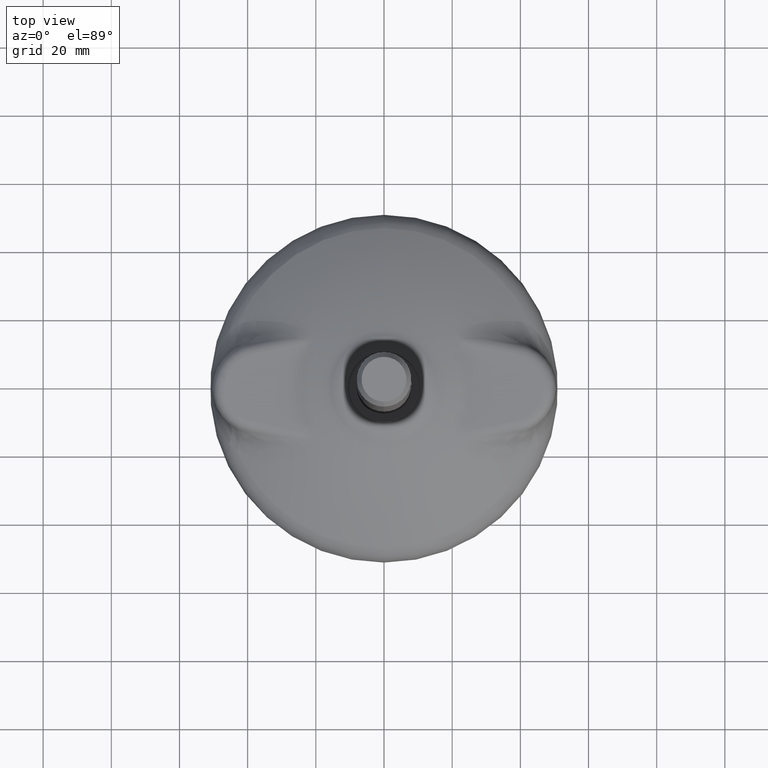
[diagram: clean part render]
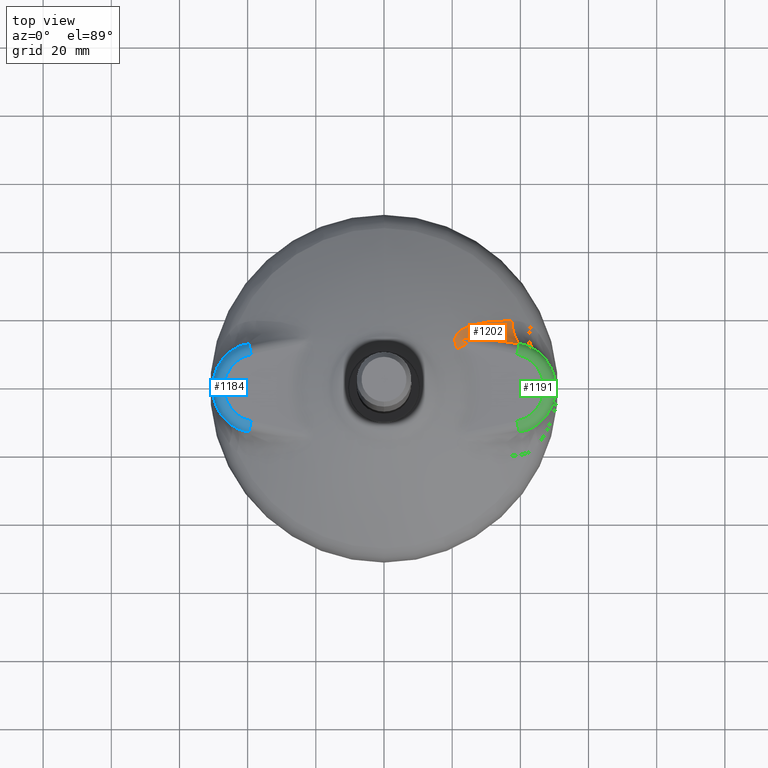
[diagram: same view with three faces highlighted in distinct colors, each labeled with its STEP entity id]
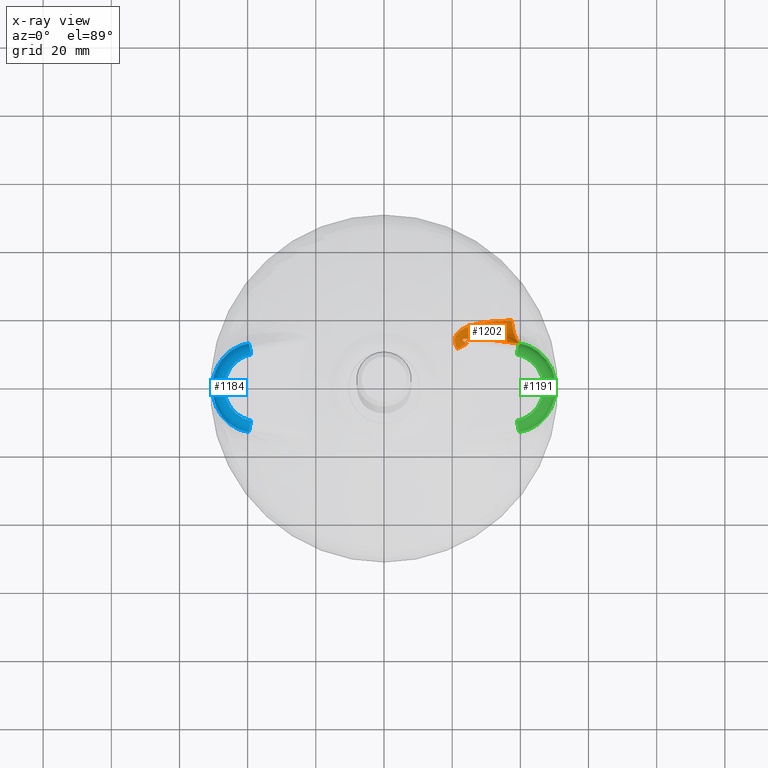
[diagram: x-ray of the same camera — body ghosted, the three highlighted faces saturated]
A machine part, top view with three faces highlighted in distinct colors.
The next image is the same camera in x-ray (body ghosted, the three faces saturated) — at least one of them is partly hidden behind the body in this view.
Their STEP definitions:

[orange] entity #1202 — the highlighted face is a freeform B-spline surface patch.
#28=(
BOUNDED_SURFACE()
B_SPLINE_SURFACE(2,3,((#5017,#5018,#5019,#5020,#5021,#5022,#5023,#5024,
#5025,#5026,#5027,#5028,#5029,#5030,#5031,#5032,#5033,#5034,#5035,#5036,
#5037,#5038,#5039,#5040,#5041,#5042,#5043,#5044,#5045,#5046,#5047,#5048,
#5049,#5050,#5051,#5052,#5053,#5054,#5055,#5056,#5057,#5058,#5059,#5060,
#5061,#5062,#5063,#5064,#5065,#5066),(#5067,#5068,#5069,#5070,#5071,#5072,
#5073,#5074,#5075,#5076,#5077,#5078,#5079,#5080,#5081,#5082,#5083,#5084,
#5085,#5086,#5087,#5088,#5089,#5090,#5091,#5092,#5093,#5094,#5095,#5096,
#5097,#5098,#5099,#5100,#5101,#5102,#5103,#5104,#5105,#5106,#5107,#5108,
#5109,#5110,#5111,#5112,#5113,#5114,#5115,#5116),(#5117,#5118,#5119,#5120,
#5121,#5122,#5123,#5124,#5125,#5126,#5127,#5128,#5129,#5130,#5131,#5132,
#5133,#5134,#5135,#5136,#5137,#5138,#5139,#5140,#5141,#5142,#5143,#5144,
#5145,#5146,#5147,#5148,#5149,#5150,#5151,#5152,#5153,#5154,#5155,#5156,
#5157,#5158,#5159,#5160,#5161,#5162,#5163,#5164,#5165,#5166)),
 .UNSPECIFIED.,.F.,.F.,.F.)
B_SPLINE_SURFACE_WITH_KNOTS((3,3),(4,2,2,2,2,2,2,2,2,2,2,2,2,2,2,2,2,2,
2,2,2,2,2,2,4),(0.,1.),(7.806256E-18,0.003111461827844,0.006222923655688,
0.009334385483532,0.010890116397454,0.012445847311376,0.013223712768337,
0.014001578225298,0.01555730913922,0.017113040053142,0.017890905510103,
0.018668770967064,0.019057703695544,0.019446636424024,0.020224501880985,
0.020613434609466,0.020807900973706,0.021002367337946,0.021780232794907,
0.022169165523388,0.022558098251868,0.022947030980349,0.023335963708829,
0.02411382916579,0.024891694622751),.UNSPECIFIED.)
GEOMETRIC_REPRESENTATION_ITEM()
RATIONAL_B_SPLINE_SURFACE(((1.,1.,1.,1.,1.,1.,1.,1.,1.,1.,1.,1.,1.,1.,1.,
1.,1.,1.,1.,1.,1.,1.,1.,1.,1.,1.,1.,1.,1.,1.,1.,1.,1.,1.,1.,1.,1.,1.,1.,
1.,1.,1.,1.,1.,1.,1.,1.,1.,1.,1.),(0.898510834248908,0.905579572441378,
0.912308116967162,0.925126065878863,0.931215731626219,0.942783777935569,
0.948262376442636,0.956028691234611,0.958542044670219,0.963416309284895,
0.965777274821277,0.969200925434766,0.97032248103718,0.972525201378942,
0.973607452985371,0.976773851942396,0.978783066513544,0.982573134624094,
0.984354992045995,0.986815492776928,0.987602208696838,0.989070252964774,
0.989753585728489,0.990686673900543,0.99098231125614,0.991538903665915,
0.991797758654835,0.992506692020486,0.992891548371387,0.993312117955322,
0.993426089976647,0.993553457520245,0.993588616143071,0.993643000508348,
0.993662399331259,0.993720768875192,0.993643962880561,0.993348910787059,
0.993220784050269,0.992914236584693,0.992735352280686,0.992331245123687,
0.992106014775609,0.99161315274586,0.991346337317115,0.990499785167772,
0.989871268855994,0.988511453816972,0.987779839759137,0.987004622672797),
(1.,1.,1.,1.,1.,1.,1.,1.,1.,1.,1.,1.,1.,1.,1.,1.,1.,1.,1.,1.,1.,1.,1.,1.,
1.,1.,1.,1.,1.,1.,1.,1.,1.,1.,1.,1.,1.,1.,1.,1.,1.,1.,1.,1.,1.,1.,1.,1.,
1.,1.)))
REPRESENTATION_ITEM('')
SURFACE()
);
#78=B_SPLINE_CURVE_WITH_KNOTS('',3,(#3633,#3634,#3635,#3636,#3637,#3638,
#3639,#3640,#3641,#3642,#3643,#3644,#3645,#3646,#3647,#3648,#3649,#3650,
#3651,#3652,#3653,#3654,#3655,#3656,#3657,#3658,#3659,#3660,#3661,#3662,
#3663,#3664,#3665,#3666,#3667,#3668,#3669,#3670,#3671,#3672,#3673,#3674,
#3675,#3676,#3677,#3678,#3679,#3680,#3681,#3682,#3683,#3684,#3685,#3686,
#3687,#3688,#3689,#3690,#3691,#3692,#3693,#3694,#3695,#3696,#3697,#3698,
#3699,#3700,#3701,#3702,#3703,#3704,#3705,#3706,#3707,#3708,#3709,#3710,
#3711,#3712,#3713,#3714,#3715,#3716,#3717,#3718,#3719,#3720,#3721,#3722,
#3723,#3724,#3725,#3726,#3727,#3728,#3729,#3730,#3731,#3732,#3733,#3734,
#3735,#3736,#3737,#3738,#3739,#3740,#3741,#3742,#3743,#3744,#3745,#3746,
#3747,#3748,#3749,#3750,#3751,#3752,#3753,#3754,#3755,#3756,#3757,#3758,
#3759,#3760,#3761,#3762,#3763,#3764,#3765,#3766,#3767,#3768,#3769,#3770,
#3771,#3772,#3773,#3774,#3775,#3776,#3777,#3778,#3779,#3780,#3781,#3782,
#3783,#3784,#3785,#3786),.UNSPECIFIED.,.F.,.F.,(4,3,3,3,3,3,3,3,3,3,3,3,
3,3,3,3,3,3,3,3,3,3,3,3,3,3,3,3,3,3,3,3,3,3,3,3,3,3,3,3,3,3,3,3,3,3,3,3,
3,3,3,4),(0.,0.0302048110647845,0.031249999999999,0.0502740707722236,0.0604664544251323,
0.062499999999998,0.0745418838062336,0.0756288984886995,0.078124999999997,
0.0908348487928942,0.093749999999997,0.105255062238333,0.106099535359362,
0.109374999999997,0.119340557213789,0.121432066182594,0.124999999999996,
0.152329162091128,0.156249999999996,0.160104553921427,0.167899058199895,
0.171874999999996,0.183527053335969,0.187499999999995,0.214904397286686,
0.218749999999995,0.230645060430716,0.234374999999994,0.246397942669134,
0.249999999999994,0.277910693240141,0.281249999999994,0.309424038940149,
0.312499999999994,0.363404062710816,0.372371779612788,0.374999999999994,
0.431685528688812,0.435247778132884,0.437499999999994,0.466668689002116,
0.468749999999994,0.498076749880913,0.499999999999994,0.560864087320555,
0.623625116674508,0.624999999999996,0.749106126180356,0.749999999999997,
0.874559929998551,0.874999999999999,1.),.UNSPECIFIED.);
#81=B_SPLINE_CURVE_WITH_KNOTS('',3,(#4050,#4051,#4052,#4053,#4054,#4055,
#4056,#4057,#4058,#4059,#4060,#4061,#4062,#4063,#4064,#4065,#4066,#4067,
#4068,#4069,#4070,#4071,#4072,#4073,#4074,#4075,#4076,#4077,#4078,#4079,
#4080,#4081,#4082,#4083,#4084,#4085,#4086,#4087,#4088,#4089,#4090,#4091,
#4092,#4093,#4094,#4095,#4096,#4097,#4098,#4099,#4100,#4101,#4102,#4103,
#4104,#4105,#4106,#4107,#4108,#4109,#4110,#4111,#4112,#4113,#4114,#4115,
#4116,#4117,#4118,#4119,#4120,#4121,#4122,#4123,#4124,#4125,#4126,#4127,
#4128,#4129,#4130,#4131,#4132,#4133,#4134,#4135,#4136,#4137,#4138,#4139,
#4140,#4141,#4142,#4143,#4144,#4145,#4146,#4147,#4148,#4149,#4150,#4151,
#4152,#4153,#4154,#4155,#4156,#4157,#4158,#4159,#4160,#4161,#4162,#4163,
#4164,#4165,#4166,#4167,#4168,#4169,#4170,#4171,#4172,#4173,#4174,#4175,
#4176,#4177,#4178,#4179,#4180,#4181,#4182,#4183,#4184,#4185,#4186,#4187,
#4188,#4189,#4190,#4191,#4192,#4193,#4194,#4195,#4196,#4197,#4198,#4199,
#4200,#4201,#4202,#4203,#4204,#4205,#4206,#4207,#4208,#4209,#4210,#4211,
#4212,#4213,#4214,#4215,#4216,#4217,#4218,#4219,#4220,#4221,#4222,#4223,
#4224,#4225,#4226,#4227,#4228,#4229,#4230,#4231,#4232,#4233,#4234,#4235,
#4236,#4237,#4238,#4239,#4240,#4241,#4242,#4243,#4244,#4245,#4246,#4247,
#4248,#4249,#4250,#4251,#4252,#4253,#4254,#4255,#4256,#4257,#4258,#4259,
#4260,#4261,#4262,#4263,#4264,#4265,#4266,#4267,#4268,#4269,#4270,#4271,
#4272,#4273,#4274,#4275,#4276,#4277,#4278,#4279,#4280,#4281,#4282,#4283,
#4284,#4285,#4286,#4287,#4288,#4289,#4290,#4291,#4292,#4293,#4294,#4295,
#4296,#4297,#4298,#4299,#4300,#4301,#4302),.UNSPECIFIED.,.F.,.F.,(4,3,3,
3,3,3,3,3,3,3,3,3,3,3,3,3,3,3,3,3,3,3,3,3,3,3,3,3,3,3,3,3,3,3,3,3,3,3,3,
3,3,3,3,3,3,3,3,3,3,3,3,3,3,3,3,3,3,3,3,3,3,3,3,3,3,3,3,3,3,3,3,3,3,3,3,
3,3,3,3,3,3,3,3,3,4),(0.,0.129197721185119,0.149987509894048,0.224276501332924,
0.264662234991603,0.2985654927718,0.374999999999995,0.445341528630733,0.499999999999994,
0.517853515961245,0.569796400265717,0.589562739669939,0.624999999999993,
0.625022374115211,0.649533300403994,0.660106406105635,0.685308507272558,
0.687499999999992,0.711177542794922,0.728099209588683,0.748261641966247,
0.749999999999992,0.766085564173167,0.781119846202096,0.791896872847737,
0.803091343300908,0.812499999999991,0.821332193592569,0.830462768327276,
0.839105624818966,0.843749999999991,0.84812016870517,0.854547394716534,
0.859374999999991,0.860278852121113,0.86511581478686,0.869677050411002,
0.871338524752818,0.874999999999992,0.878697846187241,0.882216837281157,
0.882812499999992,0.885725728747966,0.88848952723341,0.889554847538056,
0.890624999999992,0.893080237471867,0.895407169868724,0.896629171507434,
0.898437499999992,0.89973459233789,0.901906821907411,0.902343749999992,
0.902602942042989,0.904426471021491,0.906249999999993,0.907789698760046,
0.90935323181805,0.910156249999993,0.912209189914451,0.913775305312333,
0.914062499999993,0.91644621147804,0.918967849446572,0.920593698558101,
0.921874999999993,0.924690417207935,0.927656983754502,0.928708668980369,
0.929687499999994,0.933367409032242,0.937223305465441,0.937499999999994,
0.938132410202912,0.942372988913315,0.946910639660947,0.94874651606486,
0.953124999999996,0.959586469366438,0.966410373456802,0.968749999999997,
0.972865191358446,0.981736422164748,0.991156493893673,1.),.UNSPECIFIED.);
#223=FACE_OUTER_BOUND('',#309,.T.);
#309=EDGE_LOOP('',(#856,#857,#858,#859));
#410=CIRCLE('',#1340,10.);
#412=CIRCLE('',#1342,10.);
#503=VERTEX_POINT('',#3630);
#504=VERTEX_POINT('',#3632);
#506=VERTEX_POINT('',#3799);
#510=VERTEX_POINT('',#4048);
#615=EDGE_CURVE('',#503,#504,#78,.T.);
#624=EDGE_CURVE('',#510,#506,#81,.T.);
#642=EDGE_CURVE('',#503,#506,#410,.T.);
#644=EDGE_CURVE('',#504,#510,#412,.T.);
#856=ORIENTED_EDGE('',*,*,#642,.T.);
#857=ORIENTED_EDGE('',*,*,#624,.F.);
#858=ORIENTED_EDGE('',*,*,#644,.F.);
#859=ORIENTED_EDGE('',*,*,#615,.F.);
#1202=ADVANCED_FACE('',(#223),#28,.T.);
#1340=AXIS2_PLACEMENT_3D('',#4997,#1559,#1560);
#1342=AXIS2_PLACEMENT_3D('',#5167,#1563,#1564);
#1559=DIRECTION('center_axis',(0.468711974674461,-0.883351054109728,-4.972316E-16));
#1560=DIRECTION('ref_axis',(0.883351054109728,0.468711974674461,0.));
#1563=DIRECTION('center_axis',(-0.908039969503642,0.015589487399067,0.418593336863429));
#1564=DIRECTION('ref_axis',(0.418644211949313,1.64798730217797E-17,0.908150331058321));
#3630=CARTESIAN_POINT('',(21.5051195353776,11.4107601911403,18.5164374964507));
#3632=CARTESIAN_POINT('',(37.4545312795014,19.8008125886452,10.8206559596953));
#3633=CARTESIAN_POINT('Ctrl Pts',(21.5051195353776,11.4107601911403,18.5164374964506));
#3634=CARTESIAN_POINT('Ctrl Pts',(21.3952990703397,11.6177316977279,18.5164374964506));
#3635=CARTESIAN_POINT('Ctrl Pts',(21.2942092140925,11.827856350892,18.5122323481843));
#3636=CARTESIAN_POINT('Ctrl Pts',(21.204218152082,12.0420060537657,18.50302327646));
#3637=CARTESIAN_POINT('Ctrl Pts',(21.2011041560342,12.0494163600061,18.5027046113358));
#3638=CARTESIAN_POINT('Ctrl Pts',(21.198003382257,12.056831464147,18.5023799794109));
#3639=CARTESIAN_POINT('Ctrl Pts',(21.194915981459,12.0642514233111,18.5020493282866));
#3640=CARTESIAN_POINT('Ctrl Pts',(21.1387204656968,12.199306266994,18.4960309614861));
#3641=CARTESIAN_POINT('Ctrl Pts',(21.086934232674,12.3360158470238,18.488016692366));
#3642=CARTESIAN_POINT('Ctrl Pts',(21.0404989267409,12.4746226600093,18.477698458265));
#3643=CARTESIAN_POINT('Ctrl Pts',(21.0156206313026,12.5488829921837,18.4721703354023));
#3644=CARTESIAN_POINT('Ctrl Pts',(20.992277615901,12.6236876435554,18.4659811651054));
#3645=CARTESIAN_POINT('Ctrl Pts',(20.9706092079498,12.6990716925408,18.4590858807759));
#3646=CARTESIAN_POINT('Ctrl Pts',(20.9662860097065,12.7141120309395,18.457710159903));
#3647=CARTESIAN_POINT('Ctrl Pts',(20.9620285940492,12.7291821386096,18.4563053758909));
#3648=CARTESIAN_POINT('Ctrl Pts',(20.9578391439989,12.7442794714321,18.4548713615229));
#3649=CARTESIAN_POINT('Ctrl Pts',(20.9330308134937,12.83368013689,18.4463796736011));
#3650=CARTESIAN_POINT('Ctrl Pts',(20.9105652201617,12.9241995179398,18.4368457371489));
#3651=CARTESIAN_POINT('Ctrl Pts',(20.8909434209517,13.0151494025763,18.4262486980934));
#3652=CARTESIAN_POINT('Ctrl Pts',(20.8891721711888,13.0233594020713,18.4252921088064));
#3653=CARTESIAN_POINT('Ctrl Pts',(20.8874240616662,13.0315729028544,18.424326869296));
#3654=CARTESIAN_POINT('Ctrl Pts',(20.8856994404797,13.0397893958239,18.4233529717919));
#3655=CARTESIAN_POINT('Ctrl Pts',(20.8817392091971,13.058656850744,18.4211166201851));
#3656=CARTESIAN_POINT('Ctrl Pts',(20.8779046490821,13.0775282798599,18.4188362529139));
#3657=CARTESIAN_POINT('Ctrl Pts',(20.8741981679038,13.0964021168282,18.4165115415042));
#3658=CARTESIAN_POINT('Ctrl Pts',(20.8553252113684,13.1925054254966,18.404674390503));
#3659=CARTESIAN_POINT('Ctrl Pts',(20.8397584550814,13.2887359106614,18.391680071114));
#3660=CARTESIAN_POINT('Ctrl Pts',(20.8277778216033,13.3851082117806,18.3774559493519));
#3661=CARTESIAN_POINT('Ctrl Pts',(20.8250299243848,13.4072123165986,18.3741934820795));
#3662=CARTESIAN_POINT('Ctrl Pts',(20.822470594142,13.4293238715137,18.3708663497775));
#3663=CARTESIAN_POINT('Ctrl Pts',(20.8201038090484,13.4514430877241,18.367473475465));
#3664=CARTESIAN_POINT('Ctrl Pts',(20.8107629523062,13.5387397461422,18.354083010491));
#3665=CARTESIAN_POINT('Ctrl Pts',(20.804419749002,13.6262105242882,18.3396587186588));
#3666=CARTESIAN_POINT('Ctrl Pts',(20.8013138776207,13.7137219844279,18.3241631438725));
#3667=CARTESIAN_POINT('Ctrl Pts',(20.8010859062421,13.7201453374128,18.3230257665919));
#3668=CARTESIAN_POINT('Ctrl Pts',(20.8008753539552,13.7265689083274,18.3218826251264));
#3669=CARTESIAN_POINT('Ctrl Pts',(20.8006823047112,13.7329926437918,18.3207337082642));
#3670=CARTESIAN_POINT('Ctrl Pts',(20.7999335230663,13.7579084378539,18.3162773952527));
#3671=CARTESIAN_POINT('Ctrl Pts',(20.7994504787828,13.7828537615795,18.3117283124472));
#3672=CARTESIAN_POINT('Ctrl Pts',(20.7992372164415,13.8078054613972,18.3070898555457));
#3673=CARTESIAN_POINT('Ctrl Pts',(20.7985883686303,13.8837206732517,18.2929774126691));
#3674=CARTESIAN_POINT('Ctrl Pts',(20.8004434818559,13.9599630037489,18.2779851241239));
#3675=CARTESIAN_POINT('Ctrl Pts',(20.8049424981105,14.0358106464358,18.2622132573202));
#3676=CARTESIAN_POINT('Ctrl Pts',(20.8058867235707,14.0517290764381,18.2589031563226));
#3677=CARTESIAN_POINT('Ctrl Pts',(20.8069472316309,14.0676301407521,18.2555587696533));
#3678=CARTESIAN_POINT('Ctrl Pts',(20.8081250324836,14.0835072235504,18.2521811046328));
#3679=CARTESIAN_POINT('Ctrl Pts',(20.810134259102,14.1105921567171,18.2464190995778));
#3680=CARTESIAN_POINT('Ctrl Pts',(20.8124793336434,14.1375749714816,18.2405682913012));
#3681=CARTESIAN_POINT('Ctrl Pts',(20.8151588638575,14.1644477185304,18.2346308997508));
#3682=CARTESIAN_POINT('Ctrl Pts',(20.8356831558695,14.3702838403633,18.1891524956143));
#3683=CARTESIAN_POINT('Ctrl Pts',(20.8759015297552,14.5703753379519,18.1384372743412));
#3684=CARTESIAN_POINT('Ctrl Pts',(20.9358115541002,14.7647541085973,18.0825989372763));
#3685=CARTESIAN_POINT('Ctrl Pts',(20.9444066765481,14.7926410833272,18.0745879683339));
#3686=CARTESIAN_POINT('Ctrl Pts',(20.9534067498681,14.8204105051041,18.0664714498208));
#3687=CARTESIAN_POINT('Ctrl Pts',(20.9628113893904,14.8480625040012,18.0582496157409));
#3688=CARTESIAN_POINT('Ctrl Pts',(20.9720570381505,14.8752470301819,18.0501667764268));
#3689=CARTESIAN_POINT('Ctrl Pts',(20.9816929997695,14.9023161177976,18.0419827410129));
#3690=CARTESIAN_POINT('Ctrl Pts',(20.9917197507628,14.9292723661091,18.033696995493));
#3691=CARTESIAN_POINT('Ctrl Pts',(21.0119953922794,14.9837820699757,18.0169419363549));
#3692=CARTESIAN_POINT('Ctrl Pts',(21.0339541387709,15.0380113356077,17.9997097367078));
#3693=CARTESIAN_POINT('Ctrl Pts',(21.0572235426025,15.0911585290253,17.9822706009565));
#3694=CARTESIAN_POINT('Ctrl Pts',(21.0690931615098,15.1182686748817,17.9733749757423));
#3695=CARTESIAN_POINT('Ctrl Pts',(21.0813077649025,15.1451187228243,17.9644202138163));
#3696=CARTESIAN_POINT('Ctrl Pts',(21.0938579876754,15.1717187717329,17.9554072744473));
#3697=CARTESIAN_POINT('Ctrl Pts',(21.1306381702034,15.2496739341084,17.9289935954949));
#3698=CARTESIAN_POINT('Ctrl Pts',(21.1702934367888,15.3254747583534,17.9020838428092));
#3699=CARTESIAN_POINT('Ctrl Pts',(21.2125703502489,15.3993102656547,17.8747203517467));
#3700=CARTESIAN_POINT('Ctrl Pts',(21.2269853136423,15.4244856166389,17.8653903489225));
#3701=CARTESIAN_POINT('Ctrl Pts',(21.2417040099229,15.4494332161021,17.8560078531561));
#3702=CARTESIAN_POINT('Ctrl Pts',(21.2567185796977,15.4741589307117,17.8465740081305));
#3703=CARTESIAN_POINT('Ctrl Pts',(21.3602853451219,15.6447107562611,17.7815016930745));
#3704=CARTESIAN_POINT('Ctrl Pts',(21.4779149223415,15.8048071656647,17.7139690736282));
#3705=CARTESIAN_POINT('Ctrl Pts',(21.6069136179062,15.9561807789292,17.6444234256638));
#3706=CARTESIAN_POINT('Ctrl Pts',(21.6250157395652,15.9774227267744,17.6346642279076));
#3707=CARTESIAN_POINT('Ctrl Pts',(21.6433514366689,15.99850058876,17.6248607892561));
#3708=CARTESIAN_POINT('Ctrl Pts',(21.661908034057,16.019411512324,17.615017389339));
#3709=CARTESIAN_POINT('Ctrl Pts',(21.7193065392526,16.0840923225894,17.5845701888383));
#3710=CARTESIAN_POINT('Ctrl Pts',(21.7788823059736,16.1472505028397,17.5537062088867));
#3711=CARTESIAN_POINT('Ctrl Pts',(21.8402463008083,16.2087714106306,17.5225620751352));
#3712=CARTESIAN_POINT('Ctrl Pts',(21.8594882368873,16.2280625499774,17.5127961947929));
#3713=CARTESIAN_POINT('Ctrl Pts',(21.878872229973,16.2471608010874,17.5030195339093));
#3714=CARTESIAN_POINT('Ctrl Pts',(21.8983921532984,16.2660717984418,17.4932327356705));
#3715=CARTESIAN_POINT('Ctrl Pts',(21.9613119177314,16.3270287744963,17.4616863494746));
#3716=CARTESIAN_POINT('Ctrl Pts',(22.0256778828988,16.3860792846775,17.4300162913957));
#3717=CARTESIAN_POINT('Ctrl Pts',(22.0913269810095,16.443432405016,17.3982270744016));
#3718=CARTESIAN_POINT('Ctrl Pts',(22.1109953618394,16.4606153221476,17.3887030680692));
#3719=CARTESIAN_POINT('Ctrl Pts',(22.1307782240898,16.4776467557785,17.3791684046411));
#3720=CARTESIAN_POINT('Ctrl Pts',(22.1506724979204,16.4945305969307,17.3696231358806));
#3721=CARTESIAN_POINT('Ctrl Pts',(22.3048241182639,16.6253557526203,17.2956612180658));
#3722=CARTESIAN_POINT('Ctrl Pts',(22.4656518936355,16.747397771279,17.2210490287168));
#3723=CARTESIAN_POINT('Ctrl Pts',(22.6316104430811,16.8624607482729,17.1458469232459));
#3724=CARTESIAN_POINT('Ctrl Pts',(22.6514661486077,16.8762271772748,17.1368495509129));
#3725=CARTESIAN_POINT('Ctrl Pts',(22.671400215194,16.8898953431013,17.1278418000765));
#3726=CARTESIAN_POINT('Ctrl Pts',(22.6914073289247,16.9034654418199,17.1188252307375));
#3727=CARTESIAN_POINT('Ctrl Pts',(22.8602091916668,17.0179576155596,17.0427516041037));
#3728=CARTESIAN_POINT('Ctrl Pts',(23.034352259999,17.1255881081817,16.965981312683));
#3729=CARTESIAN_POINT('Ctrl Pts',(23.2107258675364,17.226523425709,16.8894130969302));
#3730=CARTESIAN_POINT('Ctrl Pts',(23.2299818339927,17.2375432552384,16.8810535979397));
#3731=CARTESIAN_POINT('Ctrl Pts',(23.2492696301852,17.2484888399578,16.8726937514034));
#3732=CARTESIAN_POINT('Ctrl Pts',(23.2685886742057,17.2593614502117,16.8643334436852));
#3733=CARTESIAN_POINT('Ctrl Pts',(23.5882994277541,17.4392922176782,16.7259787571048));
#3734=CARTESIAN_POINT('Ctrl Pts',(23.916538766962,17.5993967567329,16.5874702163661));
#3735=CARTESIAN_POINT('Ctrl Pts',(24.2505969312574,17.7454578327841,16.4483102462457));
#3736=CARTESIAN_POINT('Ctrl Pts',(24.3094476179544,17.7711892638462,16.4237945759893));
#3737=CARTESIAN_POINT('Ctrl Pts',(24.3684787738796,17.7964848679953,16.3992587337261));
#3738=CARTESIAN_POINT('Ctrl Pts',(24.4276754397847,17.8213762748953,16.3747000567664));
#3739=CARTESIAN_POINT('Ctrl Pts',(24.4450245472428,17.8286713427253,16.3675025040142));
#3740=CARTESIAN_POINT('Ctrl Pts',(24.4623881391608,17.8359310832583,16.3603030320702));
#3741=CARTESIAN_POINT('Ctrl Pts',(24.4797660221067,17.8431558779149,16.353101606616));
#3742=CARTESIAN_POINT('Ctrl Pts',(24.8545726734358,17.9989804452816,16.1977810668433));
#3743=CARTESIAN_POINT('Ctrl Pts',(25.2360296041048,18.1386732868759,16.041521440297));
#3744=CARTESIAN_POINT('Ctrl Pts',(25.6221078742204,18.2662465553163,15.8839666293907));
#3745=CARTESIAN_POINT('Ctrl Pts',(25.6463699237223,18.2742635539241,15.8740655214617));
#3746=CARTESIAN_POINT('Ctrl Pts',(25.6706502137599,18.282232703005,15.864159301923));
#3747=CARTESIAN_POINT('Ctrl Pts',(25.6949482371284,18.2901550027804,15.8542478837642));
#3748=CARTESIAN_POINT('Ctrl Pts',(25.7103105918476,18.295163853809,15.8479814184136));
#3749=CARTESIAN_POINT('Ctrl Pts',(25.7256813370919,18.3001539915412,15.8417124222287));
#3750=CARTESIAN_POINT('Ctrl Pts',(25.7410599019877,18.3051254432048,15.8354410780685));
#3751=CARTESIAN_POINT('Ctrl Pts',(25.9402288130503,18.3695110748259,15.7542204443011));
#3752=CARTESIAN_POINT('Ctrl Pts',(26.1407735528045,18.4307891369132,15.6725782900086));
#3753=CARTESIAN_POINT('Ctrl Pts',(26.3414280871235,18.4890161335667,15.5909203810214));
#3754=CARTESIAN_POINT('Ctrl Pts',(26.3557456482941,18.4931708793799,15.5850937391718));
#3755=CARTESIAN_POINT('Ctrl Pts',(26.370064771328,18.4973104457731,15.5792666098133));
#3756=CARTESIAN_POINT('Ctrl Pts',(26.3843854174737,18.5014349550296,15.5734389779952));
#3757=CARTESIAN_POINT('Ctrl Pts',(26.5861707383969,18.5595514265559,15.4913246275198));
#3758=CARTESIAN_POINT('Ctrl Pts',(26.7882769900759,18.6146859393273,15.4091024356895));
#3759=CARTESIAN_POINT('Ctrl Pts',(26.9906359734329,18.6671872870474,15.3267151585712));
#3760=CARTESIAN_POINT('Ctrl Pts',(27.0039066884088,18.6706303287641,15.3213121957072));
#3761=CARTESIAN_POINT('Ctrl Pts',(27.0171784802025,18.6740621078263,15.3159085126302));
#3762=CARTESIAN_POINT('Ctrl Pts',(27.0304513347379,18.6774826904027,15.3105040985699));
#3763=CARTESIAN_POINT('Ctrl Pts',(27.4504903974803,18.785732072295,15.1394734426918));
#3764=CARTESIAN_POINT('Ctrl Pts',(27.8715853061578,18.8827845641558,14.9677095347402));
#3765=CARTESIAN_POINT('Ctrl Pts',(28.2933273336384,18.9707990823362,14.7948448157044));
#3766=CARTESIAN_POINT('Ctrl Pts',(28.7282137326917,19.0615567360244,14.6165924474643));
#3767=CARTESIAN_POINT('Ctrl Pts',(29.1637936690959,19.1426701517782,14.4371751862408));
#3768=CARTESIAN_POINT('Ctrl Pts',(29.5997617082471,19.2156286740879,14.2563389968645));
#3769=CARTESIAN_POINT('Ctrl Pts',(29.6093123034754,19.2172269502285,14.2523774834225));
#3770=CARTESIAN_POINT('Ctrl Pts',(29.6188630796672,19.2188213448863,14.2484152838388));
#3771=CARTESIAN_POINT('Ctrl Pts',(29.6284140347859,19.2204118665565,14.2444523966525));
#3772=CARTESIAN_POINT('Ctrl Pts',(30.4905468566313,19.3639829459615,13.886735804953));
#3773=CARTESIAN_POINT('Ctrl Pts',(31.354149619992,19.4760308120509,13.5234026189723));
#3774=CARTESIAN_POINT('Ctrl Pts',(32.2179420178495,19.5628865444909,13.1532826514137));
#3775=CARTESIAN_POINT('Ctrl Pts',(32.2241634787379,19.563512122516,13.1506168640001));
#3776=CARTESIAN_POINT('Ctrl Pts',(32.2303849509555,19.5641363846307,13.1479507261787));
#3777=CARTESIAN_POINT('Ctrl Pts',(32.2366064342363,19.5647593319047,13.145284237724));
#3778=CARTESIAN_POINT('Ctrl Pts',(33.1035604773269,19.6515660680922,12.7737132083897));
#3779=CARTESIAN_POINT('Ctrl Pts',(33.9707317666062,19.7128587140619,12.3953279344884));
#3780=CARTESIAN_POINT('Ctrl Pts',(34.8374806058419,19.7515726619952,12.0094781416383));
#3781=CARTESIAN_POINT('Ctrl Pts',(34.8405428278818,19.7517094383014,12.0081149350365));
#3782=CARTESIAN_POINT('Ctrl Pts',(34.8436050448386,19.7518459319487,12.0067516354046));
#3783=CARTESIAN_POINT('Ctrl Pts',(34.8466672566964,19.7519821429867,12.0053882427256));
#3784=CARTESIAN_POINT('Ctrl Pts',(35.7164754257546,19.7906723052226,11.6181223888545));
#3785=CARTESIAN_POINT('Ctrl Pts',(36.5858695298888,19.8065661451261,11.2233492665902));
#3786=CARTESIAN_POINT('Ctrl Pts',(37.4545312795014,19.8008125886452,10.8206559596953));
#3799=CARTESIAN_POINT('',(24.3071728847043,12.8975484305337,18.));
#4048=CARTESIAN_POINT('',(39.6508092109384,12.9415398394904,15.840422178905));
#4050=CARTESIAN_POINT('Ctrl Pts',(39.6508092109384,12.9415398394904,15.840422178905));
#4051=CARTESIAN_POINT('Ctrl Pts',(38.8608406768617,13.0682224429208,15.9376983130881));
#4052=CARTESIAN_POINT('Ctrl Pts',(38.070152437892,13.1903838479402,16.0336514399839));
#4053=CARTESIAN_POINT('Ctrl Pts',(37.2785687667986,13.3077290568716,16.1283881127747));
#4054=CARTESIAN_POINT('Ctrl Pts',(37.1511914638825,13.3266116043137,16.1436326185774));
#4055=CARTESIAN_POINT('Ctrl Pts',(37.0237910351491,13.3453693529586,16.1588456122764));
#4056=CARTESIAN_POINT('Ctrl Pts',(36.8963668197713,13.3640009673948,16.1740275222398));
#4057=CARTESIAN_POINT('Ctrl Pts',(36.4410367258563,13.4305780675626,16.2282776541238));
#4058=CARTESIAN_POINT('Ctrl Pts',(35.9853920536966,13.495551837767,16.282130506972));
#4059=CARTESIAN_POINT('Ctrl Pts',(35.5294795064143,13.5587780429435,16.3356151750618));
#4060=CARTESIAN_POINT('Ctrl Pts',(35.2816317116123,13.59314971273,16.3646910518298));
#4061=CARTESIAN_POINT('Ctrl Pts',(35.0337078545184,13.6270043880661,16.3936577626381));
#4062=CARTESIAN_POINT('Ctrl Pts',(34.7857050911754,13.660319404621,16.4225212375976));
#4063=CARTESIAN_POINT('Ctrl Pts',(34.5775102447753,13.6882868944222,16.446751720576));
#4064=CARTESIAN_POINT('Ctrl Pts',(34.3692569344483,13.715874450603,16.4709097838593));
#4065=CARTESIAN_POINT('Ctrl Pts',(34.1609337729318,13.7430693924292,16.4950000502192));
#4066=CARTESIAN_POINT('Ctrl Pts',(33.6912715859534,13.8043800779998,16.5493112804306));
#4067=CARTESIAN_POINT('Ctrl Pts',(33.221235094058,13.8637142470376,16.6032755486775));
#4068=CARTESIAN_POINT('Ctrl Pts',(32.7508851064064,13.9207346777289,16.6569675257319));
#4069=CARTESIAN_POINT('Ctrl Pts',(32.3180290794278,13.9732097234047,16.7063794455333));
#4070=CARTESIAN_POINT('Ctrl Pts',(31.8850678580331,14.023706313325,16.7555424944815));
#4071=CARTESIAN_POINT('Ctrl Pts',(31.4518640372887,14.0719658421516,16.8045375820086));
#4072=CARTESIAN_POINT('Ctrl Pts',(31.1152455546636,14.1094656253665,16.8426089267883));
#4073=CARTESIAN_POINT('Ctrl Pts',(30.7784939977113,14.1456014067998,16.880580488987));
#4074=CARTESIAN_POINT('Ctrl Pts',(30.441663165139,14.1801331863848,16.9185036887528));
#4075=CARTESIAN_POINT('Ctrl Pts',(30.3316415254019,14.1914125665531,16.930890834521));
#4076=CARTESIAN_POINT('Ctrl Pts',(30.2216168848694,14.2025200405108,16.9432723195816));
#4077=CARTESIAN_POINT('Ctrl Pts',(30.1115812411369,14.2134478673479,16.9556510773495));
#4078=CARTESIAN_POINT('Ctrl Pts',(29.7914443715047,14.2452412040961,16.9916657415738));
#4079=CARTESIAN_POINT('Ctrl Pts',(29.4712054652845,14.2755230247599,17.0276564129764));
#4080=CARTESIAN_POINT('Ctrl Pts',(29.1508067082498,14.3039629098222,17.063711202045));
#4081=CARTESIAN_POINT('Ctrl Pts',(29.0288822009561,14.3147854205142,17.0774314874589));
#4082=CARTESIAN_POINT('Ctrl Pts',(28.9069348820596,14.3253408137901,17.0911610687047));
#4083=CARTESIAN_POINT('Ctrl Pts',(28.7849629196436,14.3356093477749,17.1049048558056));
#4084=CARTESIAN_POINT('Ctrl Pts',(28.5662905546342,14.3540188622826,17.1295448334693));
#4085=CARTESIAN_POINT('Ctrl Pts',(28.3475440971773,14.3715014348172,17.1542311715303));
#4086=CARTESIAN_POINT('Ctrl Pts',(28.1287718083453,14.3878847775926,17.178999165176));
#4087=CARTESIAN_POINT('Ctrl Pts',(28.1286336815163,14.3878951215864,17.1790148030086));
#4088=CARTESIAN_POINT('Ctrl Pts',(28.1284955546473,14.3879054651436,17.1790304408772));
#4089=CARTESIAN_POINT('Ctrl Pts',(28.1283574277381,14.3879158082645,17.1790460787819));
#4090=CARTESIAN_POINT('Ctrl Pts',(27.9770388858332,14.3992467355149,17.1961774614413));
#4091=CARTESIAN_POINT('Ctrl Pts',(27.8255585951113,14.4100614435073,17.2133649463624));
#4092=CARTESIAN_POINT('Ctrl Pts',(27.6741195866796,14.4202711454737,17.230603884069));
#4093=CARTESIAN_POINT('Ctrl Pts',(27.6087944078334,14.4246752327285,17.238040123255));
#4094=CARTESIAN_POINT('Ctrl Pts',(27.5434774344258,14.4289665269565,17.2454859000532));
#4095=CARTESIAN_POINT('Ctrl Pts',(27.4781879395333,14.4331368029429,17.2529406268621));
#4096=CARTESIAN_POINT('Ctrl Pts',(27.3225636128832,14.4430770910919,17.2707097464104));
#4097=CARTESIAN_POINT('Ctrl Pts',(27.1669517063322,14.4523539441761,17.2885426474063));
#4098=CARTESIAN_POINT('Ctrl Pts',(27.0112023605576,14.4608400252308,17.3064898350457));
#4099=CARTESIAN_POINT('Ctrl Pts',(26.9976589041487,14.4615779472315,17.3080504640953));
#4100=CARTESIAN_POINT('Ctrl Pts',(26.9841144363308,14.4623098720542,17.3096119570957));
#4101=CARTESIAN_POINT('Ctrl Pts',(26.9705688750004,14.4630357054957,17.3111743471453));
#4102=CARTESIAN_POINT('Ctrl Pts',(26.8242185795746,14.4708778270581,17.3280548764747));
#4103=CARTESIAN_POINT('Ctrl Pts',(26.6778857694753,14.4780036294128,17.3450225731367));
#4104=CARTESIAN_POINT('Ctrl Pts',(26.5314867327566,14.484284599041,17.3621192157888));
#4105=CARTESIAN_POINT('Ctrl Pts',(26.4268595026536,14.4887734294957,17.3743377003146));
#4106=CARTESIAN_POINT('Ctrl Pts',(26.322199177699,14.4928302924342,17.3866220369082));
#4107=CARTESIAN_POINT('Ctrl Pts',(26.2174891648549,14.4963994946413,17.3989874588287));
#4108=CARTESIAN_POINT('Ctrl Pts',(26.0927255361325,14.5006522552599,17.4137210537123));
#4109=CARTESIAN_POINT('Ctrl Pts',(25.9678678122613,14.5042270737414,17.4285690900527));
#4110=CARTESIAN_POINT('Ctrl Pts',(25.8430260360503,14.506945312237,17.4435611564497));
#4111=CARTESIAN_POINT('Ctrl Pts',(25.8322624684132,14.5071796724391,17.4448537375518));
#4112=CARTESIAN_POINT('Ctrl Pts',(25.8214990468686,14.5074076482304,17.4461473897156));
#4113=CARTESIAN_POINT('Ctrl Pts',(25.8107358579451,14.5076291152315,17.4474421321533));
#4114=CARTESIAN_POINT('Ctrl Pts',(25.711140744179,14.5096784178435,17.4594227841043));
#4115=CARTESIAN_POINT('Ctrl Pts',(25.6117182972774,14.5111699562399,17.4714776175461));
#4116=CARTESIAN_POINT('Ctrl Pts',(25.5122747218886,14.5120028891835,17.4836551808217));
#4117=CARTESIAN_POINT('Ctrl Pts',(25.419330343795,14.5127813852717,17.495036871805));
#4118=CARTESIAN_POINT('Ctrl Pts',(25.3263673435683,14.5129846426105,17.5065257586964));
#4119=CARTESIAN_POINT('Ctrl Pts',(25.2332652988383,14.5125066336224,17.5181617500144));
#4120=CARTESIAN_POINT('Ctrl Pts',(25.1665269461262,14.5121639823675,17.5265027794191));
#4121=CARTESIAN_POINT('Ctrl Pts',(25.0997178734142,14.5114708090959,17.5349194022607));
#4122=CARTESIAN_POINT('Ctrl Pts',(25.0328078658422,14.5103792420466,17.5434264816607));
#4123=CARTESIAN_POINT('Ctrl Pts',(24.9633061259454,14.5092453935851,17.5522630793715));
#4124=CARTESIAN_POINT('Ctrl Pts',(24.8936283116084,14.5076690159442,17.5612084959903));
#4125=CARTESIAN_POINT('Ctrl Pts',(24.8239531752164,14.5055709857011,17.5702597343745));
#4126=CARTESIAN_POINT('Ctrl Pts',(24.7653930636402,14.5038076467041,17.5778670611359));
#4127=CARTESIAN_POINT('Ctrl Pts',(24.7068352989609,14.5016756546384,17.5855491193385));
#4128=CARTESIAN_POINT('Ctrl Pts',(24.6484135588314,14.4991202962625,17.5933025536068));
#4129=CARTESIAN_POINT('Ctrl Pts',(24.5935712858755,14.4967215032577,17.6005809393163));
#4130=CARTESIAN_POINT('Ctrl Pts',(24.5387158042702,14.4939444637108,17.6079397196293));
#4131=CARTESIAN_POINT('Ctrl Pts',(24.4839032644112,14.4907250561948,17.6153870051055));
#4132=CARTESIAN_POINT('Ctrl Pts',(24.4272389729942,14.487396886288,17.6230858848797));
#4133=CARTESIAN_POINT('Ctrl Pts',(24.3705745878556,14.4835993975641,17.6308842741438));
#4134=CARTESIAN_POINT('Ctrl Pts',(24.3139505986229,14.4792302042197,17.638801475872));
#4135=CARTESIAN_POINT('Ctrl Pts',(24.2603512330687,14.47509439545,17.6462957728184));
#4136=CARTESIAN_POINT('Ctrl Pts',(24.206787903131,14.4704463980968,17.6538965268588));
#4137=CARTESIAN_POINT('Ctrl Pts',(24.153337133514,14.4651801530105,17.6616195047049));
#4138=CARTESIAN_POINT('Ctrl Pts',(24.1246145198672,14.4623502531967,17.6657695685948));
#4139=CARTESIAN_POINT('Ctrl Pts',(24.0959251577555,14.4593414861235,17.6699549156386));
#4140=CARTESIAN_POINT('Ctrl Pts',(24.0672866738855,14.4561347765648,17.6741779155791));
#4141=CARTESIAN_POINT('Ctrl Pts',(24.0403390219206,14.4531173929097,17.6781515872706));
#4142=CARTESIAN_POINT('Ctrl Pts',(24.013429200111,14.4499237780901,17.6821597697728));
#4143=CARTESIAN_POINT('Ctrl Pts',(23.9865451600676,14.4465319079358,17.6862090686134));
#4144=CARTESIAN_POINT('Ctrl Pts',(23.9470066861289,14.4415434698334,17.6921643899275));
#4145=CARTESIAN_POINT('Ctrl Pts',(23.9075262073858,14.4361252075114,17.6982086253302));
#4146=CARTESIAN_POINT('Ctrl Pts',(23.8681176042445,14.43018322469,17.7043620898643));
#4147=CARTESIAN_POINT('Ctrl Pts',(23.8385170922347,14.4257200943112,17.7089840679686));
#4148=CARTESIAN_POINT('Ctrl Pts',(23.8089578642789,14.420961156293,17.7136676602455));
#4149=CARTESIAN_POINT('Ctrl Pts',(23.7794635537511,14.4158585045891,17.7184212436138));
#4150=CARTESIAN_POINT('Ctrl Pts',(23.7739414587233,14.4149031566899,17.7193112369248));
#4151=CARTESIAN_POINT('Ctrl Pts',(23.7684187315341,14.413935234403,17.7202041566275));
#4152=CARTESIAN_POINT('Ctrl Pts',(23.7628951278823,14.4129542619299,17.7211001441904));
#4153=CARTESIAN_POINT('Ctrl Pts',(23.7333355749204,14.4077045898677,17.72589501969));
#4154=CARTESIAN_POINT('Ctrl Pts',(23.7038387035649,14.4020964541373,17.7307635914806));
#4155=CARTESIAN_POINT('Ctrl Pts',(23.6744301587748,14.3960611105921,17.7357189790192));
#4156=CARTESIAN_POINT('Ctrl Pts',(23.6466980236684,14.3903698067957,17.7403918888047));
#4157=CARTESIAN_POINT('Ctrl Pts',(23.6190442157383,14.3842986082207,17.7451420233577));
#4158=CARTESIAN_POINT('Ctrl Pts',(23.5915352397384,14.3777783386673,17.7499776476278));
#4159=CARTESIAN_POINT('Ctrl Pts',(23.5815148282623,14.3754032672048,17.7517390706968));
#4160=CARTESIAN_POINT('Ctrl Pts',(23.5715141010356,14.3729684952825,17.7535118077413));
#4161=CARTESIAN_POINT('Ctrl Pts',(23.561537982754,14.3704702654562,17.7552961495428));
#4162=CARTESIAN_POINT('Ctrl Pts',(23.5395531050873,14.3649647897226,17.7592283940406));
#4163=CARTESIAN_POINT('Ctrl Pts',(23.5176680412517,14.3591498689433,17.7632197161479));
#4164=CARTESIAN_POINT('Ctrl Pts',(23.4959369272889,14.3529755052633,17.7672752886551));
#4165=CARTESIAN_POINT('Ctrl Pts',(23.4739899492302,14.3467398090885,17.7713711468326));
#4166=CARTESIAN_POINT('Ctrl Pts',(23.4521968948847,14.3401388796695,17.7755324533332));
#4167=CARTESIAN_POINT('Ctrl Pts',(23.4305665577424,14.3330857852618,17.7797784843243));
#4168=CARTESIAN_POINT('Ctrl Pts',(23.4099824231117,14.3263738304783,17.7838191459651));
#4169=CARTESIAN_POINT('Ctrl Pts',(23.3895454483627,14.3192524589932,17.7879365413308));
#4170=CARTESIAN_POINT('Ctrl Pts',(23.3693085806956,14.3116314905438,17.7921453831386));
#4171=CARTESIAN_POINT('Ctrl Pts',(23.3658830682991,14.3103414825087,17.7928578174948));
#4172=CARTESIAN_POINT('Ctrl Pts',(23.3624634039569,14.309037121211,17.7935728672693));
#4173=CARTESIAN_POINT('Ctrl Pts',(23.3590499888373,14.30771792072,17.7942905978221));
#4174=CARTESIAN_POINT('Ctrl Pts',(23.342355878663,14.3012660601733,17.7978008280477));
#4175=CARTESIAN_POINT('Ctrl Pts',(23.3258158405179,14.2944639956014,17.8013735061382));
#4176=CARTESIAN_POINT('Ctrl Pts',(23.3094324840471,14.2872201555656,17.805029706765));
#4177=CARTESIAN_POINT('Ctrl Pts',(23.2938894904419,14.2803478788405,17.8084983673574));
#4178=CARTESIAN_POINT('Ctrl Pts',(23.2784873443238,14.2730780426766,17.8120422079302));
#4179=CARTESIAN_POINT('Ctrl Pts',(23.2632727243559,14.2653174975157,17.8156773757673));
#4180=CARTESIAN_POINT('Ctrl Pts',(23.2574081710374,14.2623261555714,17.8170785698587));
#4181=CARTESIAN_POINT('Ctrl Pts',(23.2515719803756,14.259261737702,17.8184933122259));
#4182=CARTESIAN_POINT('Ctrl Pts',(23.2457688293615,14.2561182352031,17.819922444889));
#4183=CARTESIAN_POINT('Ctrl Pts',(23.2399393559931,14.2529604741769,17.821358059916));
#4184=CARTESIAN_POINT('Ctrl Pts',(23.2341436041965,14.2497227787974,17.822808174642));
#4185=CARTESIAN_POINT('Ctrl Pts',(23.2283880487251,14.2463984715521,17.8242735625693));
#4186=CARTESIAN_POINT('Ctrl Pts',(23.2151831494537,14.2387715548209,17.8276355838495));
#4187=CARTESIAN_POINT('Ctrl Pts',(23.202296916332,14.2307544758959,17.8310497562005));
#4188=CARTESIAN_POINT('Ctrl Pts',(23.1897814632261,14.2222512320334,17.8345321809162));
#4189=CARTESIAN_POINT('Ctrl Pts',(23.177920038974,14.2141923481785,17.8378326221091));
#4190=CARTESIAN_POINT('Ctrl Pts',(23.1663914989626,14.2056968358373,17.841194374837));
#4191=CARTESIAN_POINT('Ctrl Pts',(23.1552841891061,14.1966682000467,17.8446292805403));
#4192=CARTESIAN_POINT('Ctrl Pts',(23.1494511228491,14.1919267611693,17.8464331405939));
#4193=CARTESIAN_POINT('Ctrl Pts',(23.1437349865919,14.1870380379289,17.848257143213));
#4194=CARTESIAN_POINT('Ctrl Pts',(23.1381541226057,14.1819861921685,17.8501027687854));
#4195=CARTESIAN_POINT('Ctrl Pts',(23.1298955122736,14.1745104275384,17.8528339413169));
#4196=CARTESIAN_POINT('Ctrl Pts',(23.1219312717895,14.1666691034449,17.8556146154771));
#4197=CARTESIAN_POINT('Ctrl Pts',(23.1143690303283,14.1584514767873,17.8584343034253));
#4198=CARTESIAN_POINT('Ctrl Pts',(23.1089447252328,14.1525570717512,17.86045683177));
#4199=CARTESIAN_POINT('Ctrl Pts',(23.1037484527746,14.1464919448966,17.8624915447589));
#4200=CARTESIAN_POINT('Ctrl Pts',(23.0988210184159,14.1402536268822,17.8645340816184));
#4201=CARTESIAN_POINT('Ctrl Pts',(23.0905690857638,14.1298063684574,17.8679547008245));
#4202=CARTESIAN_POINT('Ctrl Pts',(23.083038967256,14.1188510737861,17.8714063223623));
#4203=CARTESIAN_POINT('Ctrl Pts',(23.0763681792979,14.107292188466,17.8748943771056));
#4204=CARTESIAN_POINT('Ctrl Pts',(23.0750263990831,14.104967203213,17.8755959738093));
#4205=CARTESIAN_POINT('Ctrl Pts',(23.0737195496142,14.1026177603266,17.8762990333004));
#4206=CARTESIAN_POINT('Ctrl Pts',(23.0724490021162,14.1002430246594,17.8770035824347));
#4207=CARTESIAN_POINT('Ctrl Pts',(23.0716952950249,14.0988342972289,17.8774215311375));
#4208=CARTESIAN_POINT('Ctrl Pts',(23.0709555604595,14.0974189099964,17.877839338988));
#4209=CARTESIAN_POINT('Ctrl Pts',(23.0702301169082,14.095997060691,17.8782569214454));
#4210=CARTESIAN_POINT('Ctrl Pts',(23.0651263053764,14.085993731185,17.8811947960153));
#4211=CARTESIAN_POINT('Ctrl Pts',(23.0607348923213,14.0756694242408,17.8841212688261));
#4212=CARTESIAN_POINT('Ctrl Pts',(23.0571360515382,14.0650999673799,17.8870088440551));
#4213=CARTESIAN_POINT('Ctrl Pts',(23.053537210755,14.054530510519,17.8898964192841));
#4214=CARTESIAN_POINT('Ctrl Pts',(23.0507309972493,14.0437158903828,17.8927450903887));
#4215=CARTESIAN_POINT('Ctrl Pts',(23.0487442689105,14.0327440898903,17.8955309648748));
#4216=CARTESIAN_POINT('Ctrl Pts',(23.0470667725856,14.0234800377074,17.897883221155));
#4217=CARTESIAN_POINT('Ctrl Pts',(23.0459625190419,14.0140365364245,17.9002076785714));
#4218=CARTESIAN_POINT('Ctrl Pts',(23.0454395634669,14.0045181747126,17.9024789397697));
#4219=CARTESIAN_POINT('Ctrl Pts',(23.0449085126206,13.994852470238,17.9047853597391));
#4220=CARTESIAN_POINT('Ctrl Pts',(23.0449768831394,13.9851095721767,17.9070369223783));
#4221=CARTESIAN_POINT('Ctrl Pts',(23.0456002801374,13.9754109915885,17.9092106784041));
#4222=CARTESIAN_POINT('Ctrl Pts',(23.045920451893,13.9704298774946,17.9103271022641));
#4223=CARTESIAN_POINT('Ctrl Pts',(23.0463861763034,13.9654606463787,17.9114230614586));
#4224=CARTESIAN_POINT('Ctrl Pts',(23.0469862800171,13.9605209312062,17.9124958059475));
#4225=CARTESIAN_POINT('Ctrl Pts',(23.048520463046,13.9478924021496,17.9152383092044));
#4226=CARTESIAN_POINT('Ctrl Pts',(23.0509556563572,13.9352898609791,17.9178650139578));
#4227=CARTESIAN_POINT('Ctrl Pts',(23.0541406592011,13.9228518366538,17.9203618723991));
#4228=CARTESIAN_POINT('Ctrl Pts',(23.0565703854492,13.9133633069224,17.922266637572));
#4229=CARTESIAN_POINT('Ctrl Pts',(23.0594352138293,13.9039708035474,17.9240959258671));
#4230=CARTESIAN_POINT('Ctrl Pts',(23.06264830843,13.8947402747394,17.9258449103004));
#4231=CARTESIAN_POINT('Ctrl Pts',(23.0632375266329,13.893047577738,17.9261656395639));
#4232=CARTESIAN_POINT('Ctrl Pts',(23.0638384050184,13.8913607170496,17.9264835823883));
#4233=CARTESIAN_POINT('Ctrl Pts',(23.0644502720834,13.8896801681169,17.9267987095812));
#4234=CARTESIAN_POINT('Ctrl Pts',(23.069528759286,13.8757316378955,17.9294142604213));
#4235=CARTESIAN_POINT('Ctrl Pts',(23.0754309807245,13.8620315663354,17.9318711157329));
#4236=CARTESIAN_POINT('Ctrl Pts',(23.0819561240629,13.8486072190924,17.9341870964363));
#4237=CARTESIAN_POINT('Ctrl Pts',(23.0888588257294,13.8344061112726,17.936637084587));
#4238=CARTESIAN_POINT('Ctrl Pts',(23.0964587861914,13.8205133875971,17.9389294463839));
#4239=CARTESIAN_POINT('Ctrl Pts',(23.1045740217885,13.8069401559377,17.9410835331551));
#4240=CARTESIAN_POINT('Ctrl Pts',(23.10980639406,13.7981886908545,17.9424724002752));
#4241=CARTESIAN_POINT('Ctrl Pts',(23.1152540970119,13.7895696233851,17.9438037475629));
#4242=CARTESIAN_POINT('Ctrl Pts',(23.1208790226681,13.7810821824428,17.945082350677));
#4243=CARTESIAN_POINT('Ctrl Pts',(23.1253119219469,13.7743933881136,17.9460899940075));
#4244=CARTESIAN_POINT('Ctrl Pts',(23.1298567452742,13.7677807462278,17.9470659509595));
#4245=CARTESIAN_POINT('Ctrl Pts',(23.1344993764418,13.7612402266502,17.9480128565878));
#4246=CARTESIAN_POINT('Ctrl Pts',(23.144700679002,13.7468686738166,17.9500935023383));
#4247=CARTESIAN_POINT('Ctrl Pts',(23.1553582769806,13.7328641787921,17.9520315159182));
#4248=CARTESIAN_POINT('Ctrl Pts',(23.1663614563324,13.7191731035492,17.953852760105));
#4249=CARTESIAN_POINT('Ctrl Pts',(23.1779553556943,13.7047470051053,17.9557717801574));
#4250=CARTESIAN_POINT('Ctrl Pts',(23.1899331799812,13.6906688496469,17.9575611385718));
#4251=CARTESIAN_POINT('Ctrl Pts',(23.2022226077425,13.6768679698481,17.9592459761101));
#4252=CARTESIAN_POINT('Ctrl Pts',(23.2065793647571,13.6719753840387,17.9598432722501));
#4253=CARTESIAN_POINT('Ctrl Pts',(23.2109757682376,13.6671175789076,17.9604273887028));
#4254=CARTESIAN_POINT('Ctrl Pts',(23.2154101083903,13.6622911962956,17.9609993090456));
#4255=CARTESIAN_POINT('Ctrl Pts',(23.2195372650588,13.6577991554291,17.961531610307));
#4256=CARTESIAN_POINT('Ctrl Pts',(23.223697312005,13.6533343305043,17.9620533440046));
#4257=CARTESIAN_POINT('Ctrl Pts',(23.2278895576761,13.6488939187774,17.9625652409653));
#4258=CARTESIAN_POINT('Ctrl Pts',(23.2436502787826,13.6322002189526,17.9644897143542));
#4259=CARTESIAN_POINT('Ctrl Pts',(23.2598469916873,13.6158679752817,17.9662736757));
#4260=CARTESIAN_POINT('Ctrl Pts',(23.2763844976907,13.5998420773286,17.9679414599698));
#4261=CARTESIAN_POINT('Ctrl Pts',(23.2937128908259,13.5830497593079,17.9696890040969));
#4262=CARTESIAN_POINT('Ctrl Pts',(23.3114157030589,13.5665937549198,17.9713089755637));
#4263=CARTESIAN_POINT('Ctrl Pts',(23.3294389492025,13.550402951876,17.9728243508112));
#4264=CARTESIAN_POINT('Ctrl Pts',(23.3307322758748,13.5492411191375,17.9729330923337));
#4265=CARTESIAN_POINT('Ctrl Pts',(23.3320272742584,13.5480806489925,17.9730412932771));
#4266=CARTESIAN_POINT('Ctrl Pts',(23.3333239342402,13.5469215137971,17.9731489612323));
#4267=CARTESIAN_POINT('Ctrl Pts',(23.3362875670547,13.54427220623,17.9733950460115));
#4268=CARTESIAN_POINT('Ctrl Pts',(23.3392594679512,13.541630235234,17.9736383130596));
#4269=CARTESIAN_POINT('Ctrl Pts',(23.3422393114798,13.5389954564808,17.9738788355372));
#4270=CARTESIAN_POINT('Ctrl Pts',(23.3622204265368,13.521328147137,17.9754916407911));
#4271=CARTESIAN_POINT('Ctrl Pts',(23.3825268357848,13.5040129183953,17.9769782989842));
#4272=CARTESIAN_POINT('Ctrl Pts',(23.403049464036,13.4870256283111,17.9783579467257));
#4273=CARTESIAN_POINT('Ctrl Pts',(23.4250097967612,13.4688483004475,17.9798342451351));
#4274=CARTESIAN_POINT('Ctrl Pts',(23.4472179807949,13.4510463021079,17.9811880228561));
#4275=CARTESIAN_POINT('Ctrl Pts',(23.46959903247,13.4335769114461,17.9824384813118));
#4276=CARTESIAN_POINT('Ctrl Pts',(23.4786541243998,13.4265090157682,17.9829444010709));
#4277=CARTESIAN_POINT('Ctrl Pts',(23.4877381248699,13.4194954369702,17.9834333616768));
#4278=CARTESIAN_POINT('Ctrl Pts',(23.4968483635423,13.4125328906229,17.9839064525766));
#4279=CARTESIAN_POINT('Ctrl Pts',(23.5185758793966,13.3959275258694,17.9850347534253));
#4280=CARTESIAN_POINT('Ctrl Pts',(23.5404696384317,13.3795923521186,17.9860753031308));
#4281=CARTESIAN_POINT('Ctrl Pts',(23.562555297056,13.3634551738932,17.9870416501868));
#4282=CARTESIAN_POINT('Ctrl Pts',(23.5951478128111,13.3396410217097,17.9884677195734));
#4283=CARTESIAN_POINT('Ctrl Pts',(23.6280862234659,13.3163091600174,17.9897291389196));
#4284=CARTESIAN_POINT('Ctrl Pts',(23.6612851746404,13.2933858913961,17.9908536072976));
#4285=CARTESIAN_POINT('Ctrl Pts',(23.696346311027,13.2691768179427,17.992041149005));
#4286=CARTESIAN_POINT('Ctrl Pts',(23.7316982870059,13.2454234494187,17.9930759236872));
#4287=CARTESIAN_POINT('Ctrl Pts',(23.767298377978,13.2220363005033,17.9939838369887));
#4288=CARTESIAN_POINT('Ctrl Pts',(23.7795041353678,13.2140178416201,17.994295121853));
#4289=CARTESIAN_POINT('Ctrl Pts',(23.7917395188819,13.2060424109659,17.9945914400053));
#4290=CARTESIAN_POINT('Ctrl Pts',(23.8040041670399,13.1981063387715,17.9948736749006));
#4291=CARTESIAN_POINT('Ctrl Pts',(23.8255765732262,13.1841475059785,17.9953701005399));
#4292=CARTESIAN_POINT('Ctrl Pts',(23.8472435870688,13.1703085146005,17.9958230246964));
#4293=CARTESIAN_POINT('Ctrl Pts',(23.8689869441538,13.1565822181542,17.9962363585641));
#4294=CARTESIAN_POINT('Ctrl Pts',(23.9158596949942,13.1269920646755,17.997127393712));
#4295=CARTESIAN_POINT('Ctrl Pts',(23.9630927108504,13.0979239882148,17.9978341961366));
#4296=CARTESIAN_POINT('Ctrl Pts',(24.0105975634649,13.069303408433,17.9983852973312));
#4297=CARTESIAN_POINT('Ctrl Pts',(24.0610414228202,13.0389121447679,17.998970493782));
#4298=CARTESIAN_POINT('Ctrl Pts',(24.1117919738565,13.0090254484672,17.9993801185856));
#4299=CARTESIAN_POINT('Ctrl Pts',(24.1628041745677,12.9795506635104,17.9996411005925));
#4300=CARTESIAN_POINT('Ctrl Pts',(24.2106941186645,12.9518799144705,17.999886108915));
#4301=CARTESIAN_POINT('Ctrl Pts',(24.2588156812774,12.9245721389213,18.));
#4302=CARTESIAN_POINT('Ctrl Pts',(24.3071728847043,12.8975484305337,18.));
#4997=CARTESIAN_POINT('Origin',(24.3071728847043,12.8975484305337,28.0000000000001));
#5017=CARTESIAN_POINT('Ctrl Pts',(39.6508092109384,12.9415398394904,15.840422178905));
#5018=CARTESIAN_POINT('Ctrl Pts',(38.7299496086173,13.0892126730068,15.953816141291));
#5019=CARTESIAN_POINT('Ctrl Pts',(37.8116134419005,13.2301761513896,16.0649808094913));
#5020=CARTESIAN_POINT('Ctrl Pts',(35.9811201976421,13.4978257833999,16.2830742349883));
#5021=CARTESIAN_POINT('Ctrl Pts',(35.0689211516156,13.6245388182845,16.3900013662289));
#5022=CARTESIAN_POINT('Ctrl Pts',(33.2529463942479,13.8615999665738,16.5999987342096));
#5023=CARTESIAN_POINT('Ctrl Pts',(32.3491044126036,13.9720121951883,16.7030600130261));
#5024=CARTESIAN_POINT('Ctrl Pts',(31.003244038879,14.1219423286754,16.8552766982695));
#5025=CARTESIAN_POINT('Ctrl Pts',(30.5562982290137,14.1692809628518,16.905622784856));
#5026=CARTESIAN_POINT('Ctrl Pts',(29.6668659466796,14.2576117156216,17.0056820483252));
#5027=CARTESIAN_POINT('Ctrl Pts',(29.2243669762004,14.2986160819429,17.0553936307231));
#5028=CARTESIAN_POINT('Ctrl Pts',(28.5652612476188,14.3541053455468,17.1296609593953));
#5029=CARTESIAN_POINT('Ctrl Pts',(28.3463390881063,14.3715930580676,17.154367497882));
#5030=CARTESIAN_POINT('Ctrl Pts',(27.910375771936,14.4042385504681,17.2037246654566));
#5031=CARTESIAN_POINT('Ctrl Pts',(27.6931060763473,14.4194092014151,17.2284013679205));
#5032=CARTESIAN_POINT('Ctrl Pts',(27.0483516697407,14.4605919994729,17.3020191491306));
#5033=CARTESIAN_POINT('Ctrl Pts',(26.6268442549821,14.4824445954404,17.3506468680683));
#5034=CARTESIAN_POINT('Ctrl Pts',(25.8081371439797,14.5103496478281,17.4473307582999));
#5035=CARTESIAN_POINT('Ctrl Pts',(25.4107060761092,14.5165434627606,17.4953801698145));
#5036=CARTESIAN_POINT('Ctrl Pts',(24.8438595890499,14.5072960528681,17.5674501390803));
#5037=CARTESIAN_POINT('Ctrl Pts',(24.6593162469951,14.5010276909613,17.5915540599242));
#5038=CARTESIAN_POINT('Ctrl Pts',(24.3084905838668,14.4804220765855,17.6392200908382));
#5039=CARTESIAN_POINT('Ctrl Pts',(24.1417662096111,14.4661127974516,17.6628308159249));
#5040=CARTESIAN_POINT('Ctrl Pts',(23.9089371527073,14.4367390585326,17.6978990262951));
#5041=CARTESIAN_POINT('Ctrl Pts',(23.8342210940576,14.4256216272905,17.7095302610108));
#5042=CARTESIAN_POINT('Ctrl Pts',(23.6915702665323,14.4002859550153,17.7326703211954));
#5043=CARTESIAN_POINT('Ctrl Pts',(23.6241695042295,14.3861505965465,17.7440953246047));
#5044=CARTESIAN_POINT('Ctrl Pts',(23.4362854592346,14.3391017800041,17.7776999579432));
#5045=CARTESIAN_POINT('Ctrl Pts',(23.3295269087203,14.3014879552519,17.7992958415575));
#5046=CARTESIAN_POINT('Ctrl Pts',(23.2038908407527,14.2334328325618,17.8302358507782));
#5047=CARTESIAN_POINT('Ctrl Pts',(23.1677828232767,14.2088017501976,17.840305744431));
#5048=CARTESIAN_POINT('Ctrl Pts',(23.123345392333,14.1685761723558,17.8550015904986));
#5049=CARTESIAN_POINT('Ctrl Pts',(23.1101535854027,14.1545968297833,17.8598376613166));
#5050=CARTESIAN_POINT('Ctrl Pts',(23.0874916862824,14.1259093255871,17.8692306170889));
#5051=CARTESIAN_POINT('Ctrl Pts',(23.0779644333516,14.1111565353927,17.8738047526025));
#5052=CARTESIAN_POINT('Ctrl Pts',(23.0392930801012,14.0353590974782,17.8960656009866));
#5053=CARTESIAN_POINT('Ctrl Pts',(23.0370709255991,13.9682086847966,17.911924388967));
#5054=CARTESIAN_POINT('Ctrl Pts',(23.0754397700728,13.8580059028805,17.9328050846181));
#5055=CARTESIAN_POINT('Ctrl Pts',(23.0951753816298,13.8198708641571,17.9392388583057));
#5056=CARTESIAN_POINT('Ctrl Pts',(23.1465849605146,13.7422935951349,17.9509257408892));
#5057=CARTESIAN_POINT('Ctrl Pts',(23.1783149130234,13.7026666012204,17.9562148551703));
#5058=CARTESIAN_POINT('Ctrl Pts',(23.2525060709814,13.6219158939656,17.9657837237986));
#5059=CARTESIAN_POINT('Ctrl Pts',(23.294968666356,13.5807919851603,17.9700633374147));
#5060=CARTESIAN_POINT('Ctrl Pts',(23.3895106443151,13.4971990778815,17.9776942980562));
#5061=CARTESIAN_POINT('Ctrl Pts',(23.4414362739054,13.4548848183394,17.9810286338888));
#5062=CARTESIAN_POINT('Ctrl Pts',(23.6076821294004,13.327831861226,17.9896616321415));
#5063=CARTESIAN_POINT('Ctrl Pts',(23.7329564028848,13.2424605203715,17.9936502079311));
#5064=CARTESIAN_POINT('Ctrl Pts',(24.0050324002643,13.0707102535648,17.9988220775364));
#5065=CARTESIAN_POINT('Ctrl Pts',(24.1519079493366,12.9843159447582,18.));
#5066=CARTESIAN_POINT('Ctrl Pts',(24.3071728847043,12.8975484305337,18.));
#5067=CARTESIAN_POINT('Ctrl Pts',(37.832207246333,15.0332101121429,11.8174930217992));
#5068=CARTESIAN_POINT('Ctrl Pts',(37.0137425948085,15.2320566773427,12.1545112411419));
#5069=CARTESIAN_POINT('Ctrl Pts',(36.1816549890778,15.4082924385278,12.4903413602207));
#5070=CARTESIAN_POINT('Ctrl Pts',(34.5086700884501,15.7109497890987,13.1514937481847));
#5071=CARTESIAN_POINT('Ctrl Pts',(33.6667135864403,15.8383221125039,13.4774139714095));
#5072=CARTESIAN_POINT('Ctrl Pts',(31.9776441017603,16.0411525030357,14.1179194403116));
#5073=CARTESIAN_POINT('Ctrl Pts',(31.1294449465923,16.117510935364,14.4330442796099));
#5074=CARTESIAN_POINT('Ctrl Pts',(29.8536349481743,16.1878716991023,14.8984804983419));
#5075=CARTESIAN_POINT('Ctrl Pts',(29.4293273261529,16.20395417636,15.0518903364006));
#5076=CARTESIAN_POINT('Ctrl Pts',(28.5815609382309,16.2194147139877,15.3560843932673));
#5077=CARTESIAN_POINT('Ctrl Pts',(28.1579541988836,16.2189042413296,15.5069274270865));
#5078=CARTESIAN_POINT('Ctrl Pts',(27.523484438884,16.2032601987185,15.7316915937658));
#5079=CARTESIAN_POINT('Ctrl Pts',(27.312502047256,16.1955803909673,15.806243037458));
#5080=CARTESIAN_POINT('Ctrl Pts',(26.8913380703584,16.1746657529236,15.9548249301757));
#5081=CARTESIAN_POINT('Ctrl Pts',(26.680912211011,16.1614204104555,16.0289412720633));
#5082=CARTESIAN_POINT('Ctrl Pts',(26.0554985303225,16.1125384334023,16.2491554078815));
#5083=CARTESIAN_POINT('Ctrl Pts',(25.6438367916493,16.0678606273906,16.3939682735978));
#5084=CARTESIAN_POINT('Ctrl Pts',(24.8389420985272,15.9462829208447,16.6792053665755));
#5085=CARTESIAN_POINT('Ctrl Pts',(24.4452535755309,15.8697289874048,16.8197191244304));
#5086=CARTESIAN_POINT('Ctrl Pts',(23.8773313267289,15.718935419626,17.0274104776106));
#5087=CARTESIAN_POINT('Ctrl Pts',(23.6914618642105,15.6624361700838,17.0962793388817));
#5088=CARTESIAN_POINT('Ctrl Pts',(23.335344693106,15.5354773638637,17.2310446091926));
#5089=CARTESIAN_POINT('Ctrl Pts',(23.1646096926553,15.4649859259799,17.2971037770521));
#5090=CARTESIAN_POINT('Ctrl Pts',(22.9232068676589,15.3456799332388,17.3938385249718));
#5091=CARTESIAN_POINT('Ctrl Pts',(22.8452303050002,15.3036567806202,17.4256776809608));
#5092=CARTESIAN_POINT('Ctrl Pts',(22.6950935713546,15.2143663761007,17.4884641870539));
#5093=CARTESIAN_POINT('Ctrl Pts',(22.6234826071873,15.1674064487284,17.5191855863995));
#5094=CARTESIAN_POINT('Ctrl Pts',(22.4215904564495,15.0197733682567,17.6085771541843));
#5095=CARTESIAN_POINT('Ctrl Pts',(22.3034859532186,14.9119878953782,17.6647798493727));
#5096=CARTESIAN_POINT('Ctrl Pts',(22.1573662391211,14.7333361280409,17.7428374215084));
#5097=CARTESIAN_POINT('Ctrl Pts',(22.1138484826011,14.6709538731547,17.7678104547527));
#5098=CARTESIAN_POINT('Ctrl Pts',(22.0573270846904,14.572650908724,17.8035104238328));
#5099=CARTESIAN_POINT('Ctrl Pts',(22.0399383926948,14.5390431956323,17.8151290838015));
#5100=CARTESIAN_POINT('Ctrl Pts',(22.0086709757168,14.4711699350541,17.8374274666298));
#5101=CARTESIAN_POINT('Ctrl Pts',(21.9947210175082,14.4367924039747,17.8481499319477));
#5102=CARTESIAN_POINT('Ctrl Pts',(21.9333499400872,14.2627443761191,17.8996308100695));
#5103=CARTESIAN_POINT('Ctrl Pts',(21.9110766673129,14.1165200096395,17.9340168242786));
#5104=CARTESIAN_POINT('Ctrl Pts',(21.9167115781294,13.8875143354631,17.9754296243455));
#5105=CARTESIAN_POINT('Ctrl Pts',(21.9251481896018,13.8099293634677,17.9874528818877));
#5106=CARTESIAN_POINT('Ctrl Pts',(21.9536267743148,13.6550846666891,18.0078173853046));
#5107=CARTESIAN_POINT('Ctrl Pts',(21.9736747331487,13.5774304035389,18.0162309942451));
#5108=CARTESIAN_POINT('Ctrl Pts',(22.0241153801382,13.4217684047689,18.0298356869171));
#5109=CARTESIAN_POINT('Ctrl Pts',(22.0545158856127,13.343753072305,18.0350256737779));
#5110=CARTESIAN_POINT('Ctrl Pts',(22.1245942958303,13.1874458775506,18.0424401859011));
#5111=CARTESIAN_POINT('Ctrl Pts',(22.1641710383379,13.1094432739484,18.0446413362137));
#5112=CARTESIAN_POINT('Ctrl Pts',(22.2934556554019,12.8780876654071,18.0471943705163));
#5113=CARTESIAN_POINT('Ctrl Pts',(22.3940179351753,12.7264908114283,18.0435670487053));
#5114=CARTESIAN_POINT('Ctrl Pts',(22.6165543189598,12.4274730783462,18.0278336946678));
#5115=CARTESIAN_POINT('Ctrl Pts',(22.7386425860735,12.2800202712315,18.0156970775876));
#5116=CARTESIAN_POINT('Ctrl Pts',(22.8690101519821,12.1344496701696,18.));
#5117=CARTESIAN_POINT('Ctrl Pts',(37.4545312795014,19.8008125886452,10.8206559596953));
#5118=CARTESIAN_POINT('Ctrl Pts',(36.5828534473988,19.8065861221012,11.2247474589524));
#5119=CARTESIAN_POINT('Ctrl Pts',(35.7103943042502,19.7905628039674,11.6208837386445));
#5120=CARTESIAN_POINT('Ctrl Pts',(33.9645668071688,19.7125833573293,12.3980723820526));
#5121=CARTESIAN_POINT('Ctrl Pts',(33.0911829107926,19.6506952696909,12.7791134515311));
#5122=CARTESIAN_POINT('Ctrl Pts',(31.3447006340545,19.4750807876581,13.5274513216552));
#5123=CARTESIAN_POINT('Ctrl Pts',(30.4715723840374,19.3615347741325,13.8947162006397));
#5124=CARTESIAN_POINT('Ctrl Pts',(29.16385476418,19.1426828644863,14.4371492373021));
#5125=CARTESIAN_POINT('Ctrl Pts',(28.7282889372707,19.0615772912079,14.6165604537906));
#5126=CARTESIAN_POINT('Ctrl Pts',(27.858362774811,18.8800323406669,14.9731274755555));
#5127=CARTESIAN_POINT('Ctrl Pts',(27.4239969219755,18.7796274486276,15.1502775994366));
#5128=CARTESIAN_POINT('Ctrl Pts',(26.7739546407681,18.6109700436333,15.4149335570499));
#5129=CARTESIAN_POINT('Ctrl Pts',(26.5575276273679,18.5517261382438,15.5029767482908));
#5130=CARTESIAN_POINT('Ctrl Pts',(26.1253282321416,18.4263070826841,15.6788638938198));
#5131=CARTESIAN_POINT('Ctrl Pts',(25.9093269774306,18.3600516681696,15.7668007626895));
#5132=CARTESIAN_POINT('Ctrl Pts',(25.2661904247748,18.1503625878133,16.0291420199228));
#5133=CARTESIAN_POINT('Ctrl Pts',(24.8429082513794,17.9959951271841,16.2024297334936));
#5134=CARTESIAN_POINT('Ctrl Pts',(24.0124327786896,17.6467794060495,16.5469684152745));
#5135=CARTESIAN_POINT('Ctrl Pts',(23.6050856768149,17.4522802442137,16.7181952971206));
#5136=CARTESIAN_POINT('Ctrl Pts',(23.0135315372667,17.113669588746,16.9750208354379));
#5137=CARTESIAN_POINT('Ctrl Pts',(22.8190397430085,16.9924056055231,17.0609165641673));
#5138=CARTESIAN_POINT('Ctrl Pts',(22.4441792974429,16.7325185362013,17.2307772449246));
#5139=CARTESIAN_POINT('Ctrl Pts',(22.2633701028993,16.5937498567771,17.31491544204));
#5140=CARTESIAN_POINT('Ctrl Pts',(22.0053013390279,16.3682784119937,17.4398830543654));
#5141=CARTESIAN_POINT('Ctrl Pts',(21.9214824669563,16.2902178910674,17.4813316384126));
#5142=CARTESIAN_POINT('Ctrl Pts',(21.759008997478,16.1273260916849,17.5637925919371));
#5143=CARTESIAN_POINT('Ctrl Pts',(21.6809554674389,16.0430642976328,17.6045062586484));
#5144=CARTESIAN_POINT('Ctrl Pts',(21.4588242559058,15.78241874088,17.7242583289851));
#5145=CARTESIAN_POINT('Ctrl Pts',(21.3261276387598,15.5976568817489,17.8012165211483));
#5146=CARTESIAN_POINT('Ctrl Pts',(21.1557867935584,15.3001399562308,17.9114730477763));
#5147=CARTESIAN_POINT('Ctrl Pts',(21.1038075784068,15.1975598074584,17.9473577019085));
#5148=CARTESIAN_POINT('Ctrl Pts',(21.0339306933437,15.0379582861272,17.9997272060394));
#5149=CARTESIAN_POINT('Ctrl Pts',(21.0119724861681,14.9837206790499,18.0169608266654));
#5150=CARTESIAN_POINT('Ctrl Pts',(20.9714669746573,14.8748240698872,18.0504331724962));
#5151=CARTESIAN_POINT('Ctrl Pts',(20.9528340256424,14.8199837110653,18.0667333711807));
#5152=CARTESIAN_POINT('Ctrl Pts',(20.8677216616811,14.5438357008912,18.1460612029969));
#5153=CARTESIAN_POINT('Ctrl Pts',(20.8254222083502,14.3166874447262,18.2025749188522));
#5154=CARTESIAN_POINT('Ctrl Pts',(20.7994753078205,13.9669172358504,18.2769844959636));
#5155=CARTESIAN_POINT('Ctrl Pts',(20.7971792615755,13.8494180893582,18.2999116233902));
#5156=CARTESIAN_POINT('Ctrl Pts',(20.8041757661492,13.6165672022112,18.341558511885));
#5157=CARTESIAN_POINT('Ctrl Pts',(20.8134161947073,13.5006244521132,18.3604065784924));
#5158=CARTESIAN_POINT('Ctrl Pts',(20.8421378610697,13.2695918162346,18.3945058006292));
#5159=CARTESIAN_POINT('Ctrl Pts',(20.861620430101,13.1545020158165,18.4097564528136));
#5160=CARTESIAN_POINT('Ctrl Pts',(20.9097773993635,12.9250765785819,18.4369498267158));
#5161=CARTESIAN_POINT('Ctrl Pts',(20.9383848405044,12.8111772888464,18.4488319263166));
#5162=CARTESIAN_POINT('Ctrl Pts',(21.035050974485,12.4748586218187,18.4795961202736));
#5163=CARTESIAN_POINT('Ctrl Pts',(21.1141455283126,12.2563269657947,18.4938096415061));
#5164=CARTESIAN_POINT('Ctrl Pts',(21.29428245142,11.8276817180206,18.512239901556));
#5165=CARTESIAN_POINT('Ctrl Pts',(21.395377169815,11.6175845040204,18.5164374971863));
#5166=CARTESIAN_POINT('Ctrl Pts',(21.5051195353775,11.4107601911403,18.5164374964506));
#5167=CARTESIAN_POINT('Origin',(41.571409174697,21.9772522574475,19.6701998329191));

[blue] entity #1184 — the highlighted toroidal blend (fillet) surface has major radius 9.9975 mm and minor (blend) radius 3.5 mm.
#38=TOROIDAL_SURFACE('',#1305,9.99751007502379,3.5);
#60=B_SPLINE_CURVE_WITH_KNOTS('',3,(#2580,#2581,#2582,#2583,#2584,#2585,
#2586,#2587),.UNSPECIFIED.,.F.,.F.,(4,2,2,4),(0.,0.500000000000003,0.750000000000001,
1.),.UNSPECIFIED.);
#61=B_SPLINE_CURVE_WITH_KNOTS('',3,(#2588,#2589,#2590,#2591,#2592,#2593,
#2594,#2595,#2596,#2597,#2598,#2599,#2600),.UNSPECIFIED.,.F.,.F.,(4,3,3,
3,4),(0.,0.275275861480388,0.556591254268268,0.845321846808826,1.),
 .UNSPECIFIED.);
#62=B_SPLINE_CURVE_WITH_KNOTS('',3,(#2602,#2603,#2604,#2605,#2606,#2607,
#2608,#2609,#2610,#2611,#2612,#2613,#2614),.UNSPECIFIED.,.F.,.F.,(4,3,3,
3,4),(0.,0.288180764930574,0.571541113506251,0.845720962163743,1.),
 .UNSPECIFIED.);
#63=B_SPLINE_CURVE_WITH_KNOTS('',3,(#2615,#2616,#2617,#2618,#2619,#2620,
#2621,#2622),.UNSPECIFIED.,.F.,.F.,(4,2,2,4),(0.,0.25,0.5,1.),
 .UNSPECIFIED.);
#205=FACE_OUTER_BOUND('',#291,.T.);
#291=EDGE_LOOP('',(#755,#756,#757,#758,#759,#760,#761,#762));
#382=CIRCLE('',#1298,9.99751007502379);
#383=CIRCLE('',#1300,3.5);
#384=CIRCLE('',#1302,3.5);
#385=CIRCLE('',#1304,13.4953779695906);
#472=VERTEX_POINT('',#1811);
#475=VERTEX_POINT('',#1816);
#476=VERTEX_POINT('',#1820);
#477=VERTEX_POINT('',#2061);
#478=VERTEX_POINT('',#2317);
#479=VERTEX_POINT('',#2318);
#481=VERTEX_POINT('',#2579);
#482=VERTEX_POINT('',#2601);
#579=EDGE_CURVE('',#475,#472,#382,.T.);
#581=EDGE_CURVE('',#475,#476,#383,.T.);
#582=EDGE_CURVE('',#472,#477,#384,.T.);
#584=EDGE_CURVE('',#478,#479,#385,.T.);
#587=EDGE_CURVE('',#476,#481,#60,.T.);
#588=EDGE_CURVE('',#481,#479,#61,.T.);
#589=EDGE_CURVE('',#478,#482,#62,.T.);
#590=EDGE_CURVE('',#482,#477,#63,.T.);
#755=ORIENTED_EDGE('',*,*,#581,.T.);
#756=ORIENTED_EDGE('',*,*,#587,.T.);
#757=ORIENTED_EDGE('',*,*,#588,.T.);
#758=ORIENTED_EDGE('',*,*,#584,.F.);
#759=ORIENTED_EDGE('',*,*,#589,.T.);
#760=ORIENTED_EDGE('',*,*,#590,.T.);
#761=ORIENTED_EDGE('',*,*,#582,.F.);
#762=ORIENTED_EDGE('',*,*,#579,.F.);
#1184=ADVANCED_FACE('',(#205),#38,.T.);
#1298=AXIS2_PLACEMENT_3D('',#1818,#1472,#1473);
#1300=AXIS2_PLACEMENT_3D('',#2059,#1476,#1477);
#1302=AXIS2_PLACEMENT_3D('',#2062,#1480,#1481);
#1304=AXIS2_PLACEMENT_3D('',#2319,#1484,#1485);
#1305=AXIS2_PLACEMENT_3D('',#2578,#1486,#1487);
#1472=DIRECTION('center_axis',(0.,0.,1.));
#1473=DIRECTION('ref_axis',(1.,0.,0.));
#1476=DIRECTION('center_axis',(-0.978147600734719,-0.207911690813461,0.));
#1477=DIRECTION('ref_axis',(0.207911690813461,-0.978147600734719,0.));
#1480=DIRECTION('center_axis',(0.978147600734717,-0.207911690813471,0.));
#1481=DIRECTION('ref_axis',(0.207911690813471,0.978147600734717,0.));
#1484=DIRECTION('center_axis',(0.,0.,-1.));
#1485=DIRECTION('ref_axis',(-1.,0.,0.));
#1486=DIRECTION('center_axis',(0.,0.,1.));
#1487=DIRECTION('ref_axis',(-1.,5.45153519811549E-15,0.));
#1811=CARTESIAN_POINT('',(-38.9785992236229,-9.77904049320534,18.));
#1816=CARTESIAN_POINT('',(-38.9785992236228,9.77904049320588,18.));
#1818=CARTESIAN_POINT('Origin',(-36.9,1.729065E-13,18.));
#1820=CARTESIAN_POINT('',(-39.6508092109383,12.9415398394909,15.840422178905));
#2059=CARTESIAN_POINT('Origin',(-38.9785992236228,9.77904049320589,14.5));
#2061=CARTESIAN_POINT('',(-39.6508092109384,-12.9415398394903,15.840422178905));
#2062=CARTESIAN_POINT('Origin',(-38.9785992236229,-9.77904049320535,14.5));
#2317=CARTESIAN_POINT('',(-45.3161728056291,-10.5495621638006,14.6221482384588));
#2318=CARTESIAN_POINT('',(-45.3161728056289,10.5495621638013,14.6221482384588));
#2319=CARTESIAN_POINT('Origin',(-36.9,1.729065E-13,14.6221482384588));
#2578=CARTESIAN_POINT('Origin',(-36.9,1.729065E-13,14.5));
#2579=CARTESIAN_POINT('',(-43.177831636212,11.8856961593077,15.1222012714982));
#2580=CARTESIAN_POINT('Ctrl Pts',(-39.6508092109383,12.9415398394909,15.840422178905));
#2581=CARTESIAN_POINT('Ctrl Pts',(-40.2643685165308,12.8651052942948,15.7130619363635));
#2582=CARTESIAN_POINT('Ctrl Pts',(-40.8648455038294,12.7372536191431,15.5894218539684));
#2583=CARTESIAN_POINT('Ctrl Pts',(-41.7471036689199,12.4725739153159,15.4096843504496));
#2584=CARTESIAN_POINT('Ctrl Pts',(-42.0380958107094,12.3721310075679,15.3507259515978));
#2585=CARTESIAN_POINT('Ctrl Pts',(-42.6138898258824,12.1467791847384,15.2347493119755));
#2586=CARTESIAN_POINT('Ctrl Pts',(-42.8986295414375,12.0218185054617,15.177745489979));
#2587=CARTESIAN_POINT('Ctrl Pts',(-43.177831636212,11.8856961593076,15.1222012714984));
#2588=CARTESIAN_POINT('Ctrl Pts',(-43.177831636212,11.8856961593077,15.1222012714982));
#2589=CARTESIAN_POINT('Ctrl Pts',(-43.3876872961686,11.7833830129466,15.0804527715974));
#2590=CARTESIAN_POINT('Ctrl Pts',(-43.5937658085506,11.6756013449991,15.0372839717312));
#2591=CARTESIAN_POINT('Ctrl Pts',(-43.7961037607142,11.5622684857303,14.9929213130747));
#2592=CARTESIAN_POINT('Ctrl Pts',(-44.0028809920438,11.4464491122134,14.9475853410867));
#2593=CARTESIAN_POINT('Ctrl Pts',(-44.2057518788406,11.3248316682938,14.9010026022959));
#2594=CARTESIAN_POINT('Ctrl Pts',(-44.4047122152688,11.1972962285575,14.8534293414554));
#2595=CARTESIAN_POINT('Ctrl Pts',(-44.6089169523779,11.0663990788493,14.8046020957955));
#2596=CARTESIAN_POINT('Ctrl Pts',(-44.8090024463881,10.9292672632963,14.7547315622153));
#2597=CARTESIAN_POINT('Ctrl Pts',(-45.0049164956581,10.7857473288898,14.7041085132305));
#2598=CARTESIAN_POINT('Ctrl Pts',(-45.1098711631169,10.7088611277956,14.6769888385989));
#2599=CARTESIAN_POINT('Ctrl Pts',(-45.2136278319587,10.6301412312584,14.6496534169828));
#2600=CARTESIAN_POINT('Ctrl Pts',(-45.3161728056289,10.5495621638014,14.6221482384588));
#2601=CARTESIAN_POINT('',(-43.1778316362122,-11.885696159307,15.1222012714984));
#2602=CARTESIAN_POINT('Ctrl Pts',(-45.3161728056292,-10.5495621638008,14.6221482384588));
#2603=CARTESIAN_POINT('Ctrl Pts',(-45.1251213329914,-10.6996889710976,14.6733931183792));
#2604=CARTESIAN_POINT('Ctrl Pts',(-44.9298667241062,-10.8433631753828,14.7240481551465));
#2605=CARTESIAN_POINT('Ctrl Pts',(-44.7304865208875,-10.9807462828013,14.7738182305145));
#2606=CARTESIAN_POINT('Ctrl Pts',(-44.5344413618821,-11.1158313750207,14.8227557989477));
#2607=CARTESIAN_POINT('Ctrl Pts',(-44.334407361003,-11.2448345977279,14.8708375657369));
#2608=CARTESIAN_POINT('Ctrl Pts',(-44.1304132281607,-11.36789188075,14.917794279228));
#2609=CARTESIAN_POINT('Ctrl Pts',(-43.9330282349856,-11.4869622708197,14.963229657407));
#2610=CARTESIAN_POINT('Ctrl Pts',(-43.7319353520967,-11.6004662560236,15.0076116327787));
#2611=CARTESIAN_POINT('Ctrl Pts',(-43.527120555882,-11.7085030109912,15.0507088206997));
#2612=CARTESIAN_POINT('Ctrl Pts',(-43.411872736433,-11.7692945195173,15.0749592997865));
#2613=CARTESIAN_POINT('Ctrl Pts',(-43.2954457601986,-11.8283545032183,15.0988032214071));
#2614=CARTESIAN_POINT('Ctrl Pts',(-43.1778316362122,-11.8856961593072,15.1222012714983));
#2615=CARTESIAN_POINT('Ctrl Pts',(-43.1778316362122,-11.885696159307,15.1222012714984));
#2616=CARTESIAN_POINT('Ctrl Pts',(-42.8986295414376,-12.0218185054611,15.177745489979));
#2617=CARTESIAN_POINT('Ctrl Pts',(-42.6138898258826,-12.1467791847378,15.2347493119755));
#2618=CARTESIAN_POINT('Ctrl Pts',(-42.0380958107095,-12.3721310075673,15.3507259515978));
#2619=CARTESIAN_POINT('Ctrl Pts',(-41.74710366892,-12.4725739153153,15.4096843504496));
#2620=CARTESIAN_POINT('Ctrl Pts',(-40.8648455038295,-12.7372536191425,15.5894218539684));
#2621=CARTESIAN_POINT('Ctrl Pts',(-40.2643685165309,-12.8651052942942,15.7130619363635));
#2622=CARTESIAN_POINT('Ctrl Pts',(-39.6508092109384,-12.9415398394903,15.840422178905));

[green] entity #1191 — the highlighted toroidal blend (fillet) surface has major radius 9.9975 mm and minor (blend) radius 3.5 mm.
#40=TOROIDAL_SURFACE('',#1326,9.99751007502379,3.5);
#84=B_SPLINE_CURVE_WITH_KNOTS('',3,(#4567,#4568,#4569,#4570,#4571,#4572,
#4573,#4574),.UNSPECIFIED.,.F.,.F.,(4,2,2,4),(0.,0.499999999999997,0.749999999999999,
1.),.UNSPECIFIED.);
#85=B_SPLINE_CURVE_WITH_KNOTS('',3,(#4575,#4576,#4577,#4578,#4579,#4580,
#4581,#4582,#4583,#4584,#4585,#4586,#4587),.UNSPECIFIED.,.F.,.F.,(4,3,3,
3,4),(0.,0.275275861479894,0.556591254266581,0.845321846803583,1.),
 .UNSPECIFIED.);
#86=B_SPLINE_CURVE_WITH_KNOTS('',3,(#4589,#4590,#4591,#4592,#4593,#4594,
#4595,#4596,#4597,#4598,#4599,#4600,#4601),.UNSPECIFIED.,.F.,.F.,(4,3,3,
3,4),(0.,0.288180764931367,0.571541113507456,0.845720962166843,0.999999999999996),
 .UNSPECIFIED.);
#87=B_SPLINE_CURVE_WITH_KNOTS('',3,(#4602,#4603,#4604,#4605,#4606,#4607,
#4608,#4609),.UNSPECIFIED.,.F.,.F.,(4,2,2,4),(0.,0.249999999999999,0.499999999999998,
1.),.UNSPECIFIED.);
#212=FACE_OUTER_BOUND('',#298,.T.);
#298=EDGE_LOOP('',(#807,#808,#809,#810,#811,#812,#813,#814));
#397=CIRCLE('',#1319,9.99751007502379);
#398=CIRCLE('',#1321,3.5);
#399=CIRCLE('',#1323,3.5);
#400=CIRCLE('',#1325,13.4953779695906);
#505=VERTEX_POINT('',#3798);
#508=VERTEX_POINT('',#3803);
#509=VERTEX_POINT('',#3807);
#510=VERTEX_POINT('',#4048);
#511=VERTEX_POINT('',#4304);
#512=VERTEX_POINT('',#4305);
#514=VERTEX_POINT('',#4566);
#515=VERTEX_POINT('',#4588);
#620=EDGE_CURVE('',#508,#505,#397,.T.);
#622=EDGE_CURVE('',#508,#509,#398,.T.);
#623=EDGE_CURVE('',#505,#510,#399,.T.);
#625=EDGE_CURVE('',#511,#512,#400,.T.);
#628=EDGE_CURVE('',#509,#514,#84,.T.);
#629=EDGE_CURVE('',#514,#512,#85,.T.);
#630=EDGE_CURVE('',#511,#515,#86,.T.);
#631=EDGE_CURVE('',#515,#510,#87,.T.);
#807=ORIENTED_EDGE('',*,*,#622,.T.);
#808=ORIENTED_EDGE('',*,*,#628,.T.);
#809=ORIENTED_EDGE('',*,*,#629,.T.);
#810=ORIENTED_EDGE('',*,*,#625,.F.);
#811=ORIENTED_EDGE('',*,*,#630,.T.);
#812=ORIENTED_EDGE('',*,*,#631,.T.);
#813=ORIENTED_EDGE('',*,*,#623,.F.);
#814=ORIENTED_EDGE('',*,*,#620,.F.);
#1191=ADVANCED_FACE('',(#212),#40,.T.);
#1319=AXIS2_PLACEMENT_3D('',#3805,#1516,#1517);
#1321=AXIS2_PLACEMENT_3D('',#4046,#1520,#1521);
#1323=AXIS2_PLACEMENT_3D('',#4049,#1524,#1525);
#1325=AXIS2_PLACEMENT_3D('',#4306,#1528,#1529);
#1326=AXIS2_PLACEMENT_3D('',#4565,#1530,#1531);
#1516=DIRECTION('center_axis',(0.,0.,1.));
#1517=DIRECTION('ref_axis',(1.,0.,0.));
#1520=DIRECTION('center_axis',(0.978147600734719,0.207911690813463,0.));
#1521=DIRECTION('ref_axis',(-0.207911690813463,0.978147600734719,0.));
#1524=DIRECTION('center_axis',(-0.978147600734718,0.207911690813467,0.));
#1525=DIRECTION('ref_axis',(-0.207911690813467,-0.978147600734718,0.));
#1528=DIRECTION('center_axis',(0.,0.,-1.));
#1529=DIRECTION('ref_axis',(-1.,0.,0.));
#1530=DIRECTION('center_axis',(0.,0.,1.));
#1531=DIRECTION('ref_axis',(1.,0.,0.));
#3798=CARTESIAN_POINT('',(38.9785992236228,9.77904049320544,18.));
#3803=CARTESIAN_POINT('',(38.9785992236228,-9.77904049320579,18.));
#3805=CARTESIAN_POINT('Origin',(36.9,-8.645326E-14,18.));
#3807=CARTESIAN_POINT('',(39.6508092109383,-12.9415398394908,15.840422178905));
#4046=CARTESIAN_POINT('Origin',(38.9785992236228,-9.7790404932058,14.5));
#4048=CARTESIAN_POINT('',(39.6508092109384,12.9415398394904,15.840422178905));
#4049=CARTESIAN_POINT('Origin',(38.9785992236229,9.77904049320544,14.5));
#4304=CARTESIAN_POINT('',(45.316172805629,10.5495621638008,14.6221482384588));
#4305=CARTESIAN_POINT('',(45.3161728056289,-10.5495621638012,14.6221482384588));
#4306=CARTESIAN_POINT('Origin',(36.9,-8.645326E-14,14.6221482384588));
#4565=CARTESIAN_POINT('Origin',(36.9,-8.645326E-14,14.5));
#4566=CARTESIAN_POINT('',(43.177831636212,-11.8856961593076,15.1222012714982));
#4567=CARTESIAN_POINT('Ctrl Pts',(39.6508092109383,-12.9415398394908,15.840422178905));
#4568=CARTESIAN_POINT('Ctrl Pts',(40.2643685165308,-12.8651052942947,15.7130619363635));
#4569=CARTESIAN_POINT('Ctrl Pts',(40.8648455038295,-12.737253619143,15.5894218539684));
#4570=CARTESIAN_POINT('Ctrl Pts',(41.7471036689199,-12.4725739153158,15.4096843504496));
#4571=CARTESIAN_POINT('Ctrl Pts',(42.0380958107095,-12.3721310075678,15.3507259515978));
#4572=CARTESIAN_POINT('Ctrl Pts',(42.6138898258825,-12.1467791847383,15.2347493119755));
#4573=CARTESIAN_POINT('Ctrl Pts',(42.8986295414375,-12.0218185054616,15.177745489979));
#4574=CARTESIAN_POINT('Ctrl Pts',(43.177831636212,-11.8856961593075,15.1222012714984));
#4575=CARTESIAN_POINT('Ctrl Pts',(43.177831636212,-11.8856961593076,15.1222012714982));
#4576=CARTESIAN_POINT('Ctrl Pts',(43.3876872961683,-11.7833830129466,15.0804527715975));
#4577=CARTESIAN_POINT('Ctrl Pts',(43.5937658085499,-11.6756013449993,15.0372839717314));
#4578=CARTESIAN_POINT('Ctrl Pts',(43.7961037607131,-11.5622684857308,14.992921313075));
#4579=CARTESIAN_POINT('Ctrl Pts',(44.0028809920419,-11.4464491122144,14.9475853410872));
#4580=CARTESIAN_POINT('Ctrl Pts',(44.2057518788379,-11.3248316682954,14.9010026022965));
#4581=CARTESIAN_POINT('Ctrl Pts',(44.4047122152653,-11.1972962285597,14.8534293414563));
#4582=CARTESIAN_POINT('Ctrl Pts',(44.6089169523719,-11.0663990788532,14.804602095797));
#4583=CARTESIAN_POINT('Ctrl Pts',(44.8090024463798,-10.929267263302,14.7547315622174));
#4584=CARTESIAN_POINT('Ctrl Pts',(45.0049164956474,-10.7857473288975,14.7041085132332));
#4585=CARTESIAN_POINT('Ctrl Pts',(45.1098711631099,-10.7088611278008,14.6769888386007));
#4586=CARTESIAN_POINT('Ctrl Pts',(45.2136278319552,-10.630141231261,14.6496534169837));
#4587=CARTESIAN_POINT('Ctrl Pts',(45.3161728056289,-10.5495621638012,14.6221482384588));
#4588=CARTESIAN_POINT('',(43.1778316362121,11.8856961593072,15.1222012714982));
#4589=CARTESIAN_POINT('Ctrl Pts',(45.316172805629,10.5495621638008,14.6221482384588));
#4590=CARTESIAN_POINT('Ctrl Pts',(45.1251213329907,10.699688971098,14.6733931183793));
#4591=CARTESIAN_POINT('Ctrl Pts',(44.9298667241049,10.8433631753835,14.7240481551467));
#4592=CARTESIAN_POINT('Ctrl Pts',(44.7304865208857,10.9807462828024,14.7738182305149));
#4593=CARTESIAN_POINT('Ctrl Pts',(44.53444136188,11.115831375022,14.8227557989482));
#4594=CARTESIAN_POINT('Ctrl Pts',(44.3344073610006,11.2448345977293,14.8708375657374));
#4595=CARTESIAN_POINT('Ctrl Pts',(44.130413228158,11.3678918807515,14.9177942792286));
#4596=CARTESIAN_POINT('Ctrl Pts',(43.9330282349814,11.486962270822,14.9632296574078));
#4597=CARTESIAN_POINT('Ctrl Pts',(43.7319353520911,11.6004662560266,15.0076116327799));
#4598=CARTESIAN_POINT('Ctrl Pts',(43.5271205558749,11.7085030109948,15.0507088207011));
#4599=CARTESIAN_POINT('Ctrl Pts',(43.4118727364282,11.7692945195196,15.0749592997874));
#4600=CARTESIAN_POINT('Ctrl Pts',(43.2954457601961,11.8283545032194,15.0988032214075));
#4601=CARTESIAN_POINT('Ctrl Pts',(43.1778316362122,11.8856961593071,15.1222012714982));
#4602=CARTESIAN_POINT('Ctrl Pts',(43.1778316362122,11.8856961593071,15.1222012714984));
#4603=CARTESIAN_POINT('Ctrl Pts',(42.8986295414376,12.0218185054612,15.1777454899789));
#4604=CARTESIAN_POINT('Ctrl Pts',(42.6138898258825,12.1467791847379,15.2347493119755));
#4605=CARTESIAN_POINT('Ctrl Pts',(42.0380958107095,12.3721310075674,15.3507259515978));
#4606=CARTESIAN_POINT('Ctrl Pts',(41.74710366892,12.4725739153154,15.4096843504496));
#4607=CARTESIAN_POINT('Ctrl Pts',(40.8648455038295,12.7372536191426,15.5894218539684));
#4608=CARTESIAN_POINT('Ctrl Pts',(40.2643685165309,12.8651052942943,15.7130619363635));
#4609=CARTESIAN_POINT('Ctrl Pts',(39.6508092109384,12.9415398394904,15.840422178905));